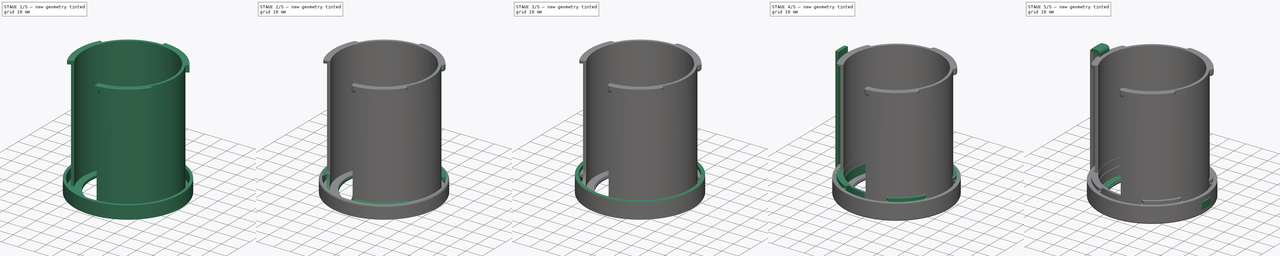
[diagram: build sequence overview — one tinted view per stage of 5, left to right]
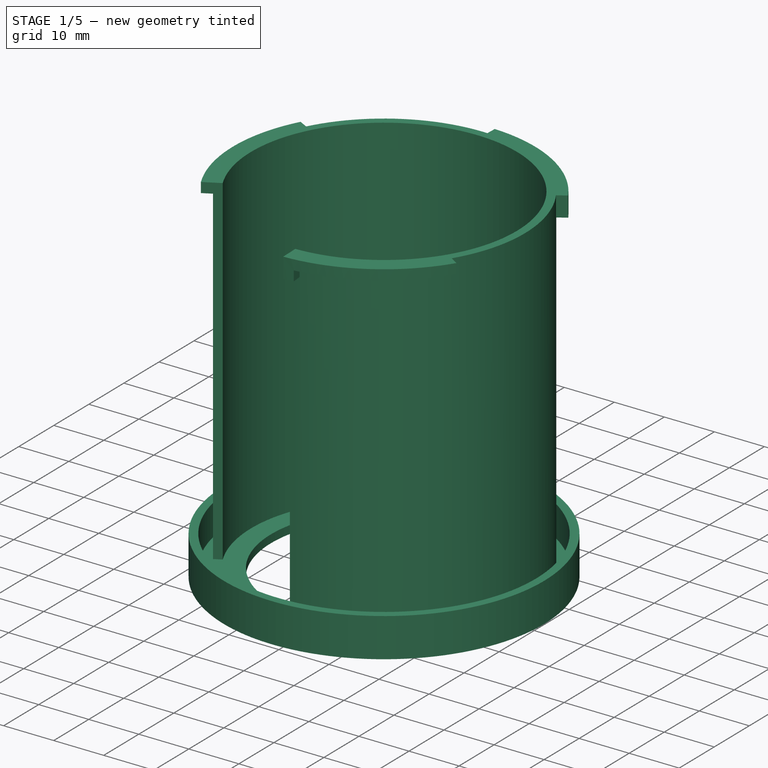
[diagram: stage 1 of 5 — iso view after this stage's code; geometry added in this stage tinted green]
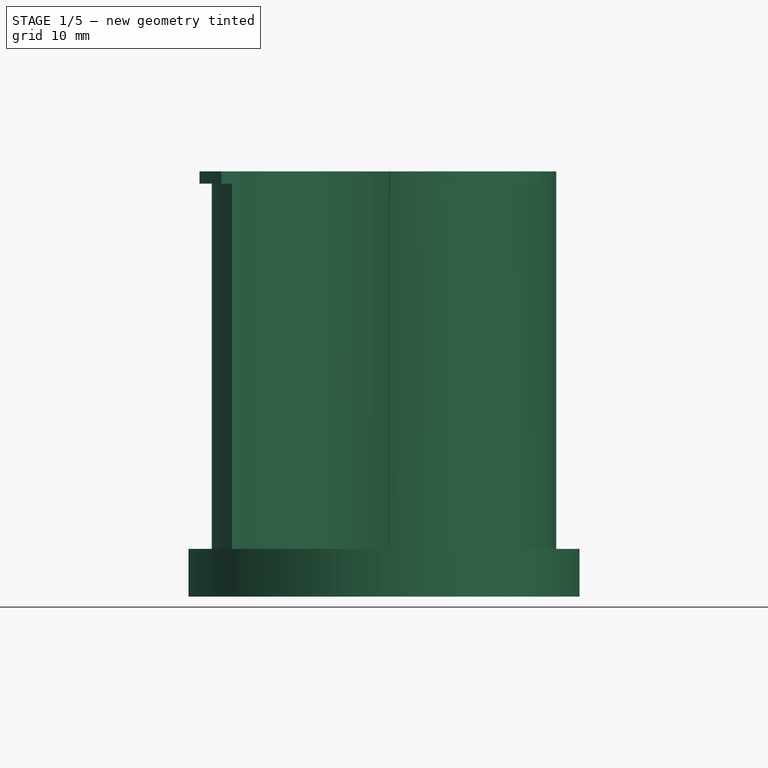
[diagram: stage 1 of 5 — front view after this stage's code; geometry added in this stage tinted green]
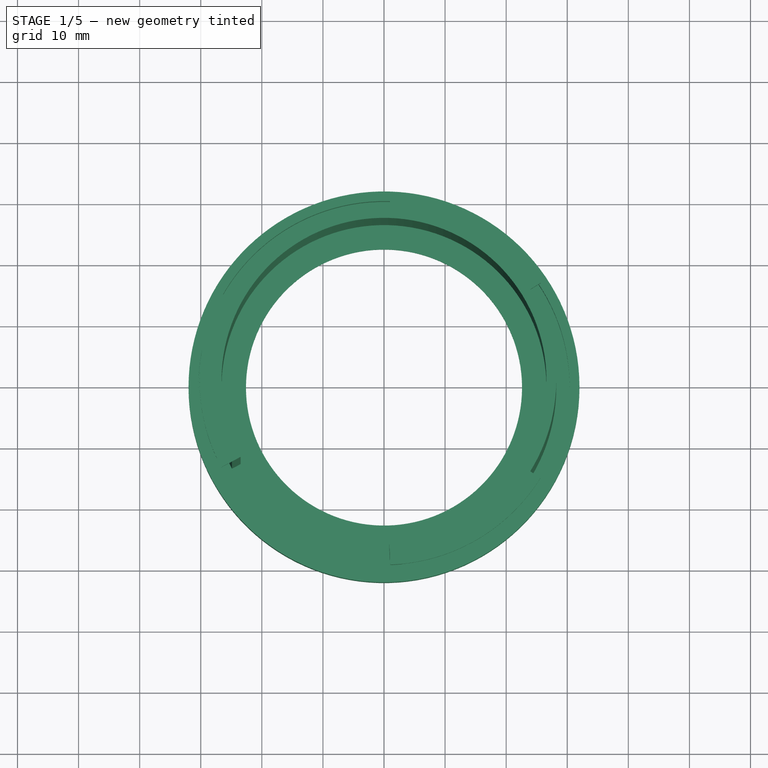
[diagram: stage 1 of 5 — top view after this stage's code; geometry added in this stage tinted green]
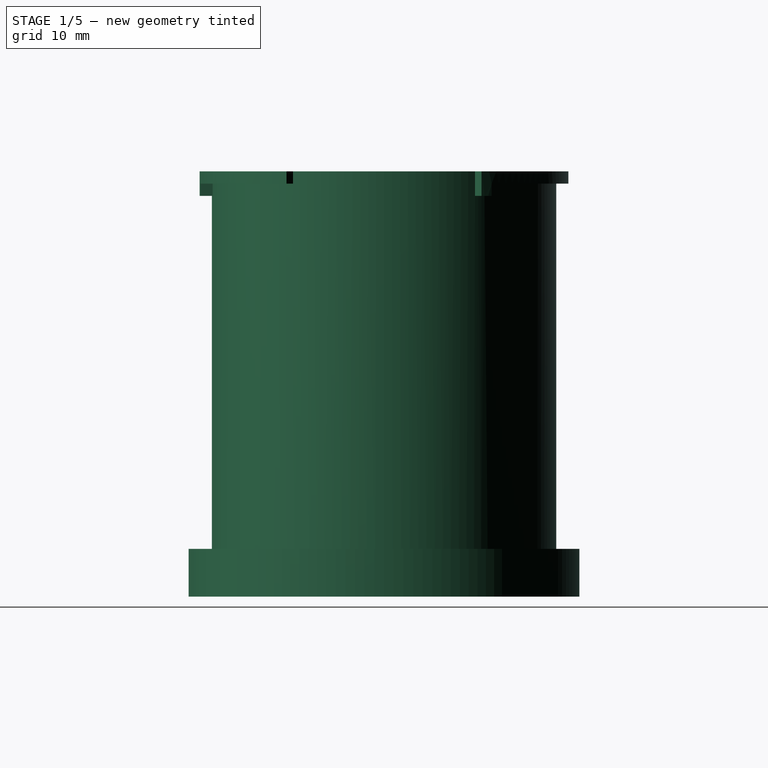
[diagram: stage 1 of 5 — right view after this stage's code; geometry added in this stage tinted green]
FCSTD DOCUMENT  (FreeCAD 0.21R33694 (Git))
Label: RadiatorHeadSupport
License: All rights reserved
LicenseURL: http://en.wikipedia.org/wiki/All_rights_reserved
objects: Sketcher::SketchObject×29, PartDesign::Pad×22, PartDesign::Fillet×11, PartDesign::Body×9, PartDesign::ShapeBinder×6, PartDesign::PolarPattern×5, App::Part×3, Spreadsheet::Sheet×1, PartDesign::Pocket×1, PartDesign::Chamfer×1
note: 119 computed .brp shape members not serialized (recipe doc carries the construction recipe); baked Part::Feature solids carry a one-line shape summary decoded from their .brp

FEATURE [PartDesign::Body] Body005  label="V2_Cap"
  Group = -> [ShapeBinder003,Sketch016,Sketch017,Pad012,Sketch018,Pad013,Sketch019,Pad014,PolarPattern001,Fillet004,Fillet005]
  Origin = -> Origin007
  Tip = -> Fillet005
FEATURE [App::Part] Part001  label="V2"
  Group = -> [Body003,Body004,Body005]
  Origin = -> Origin004
FEATURE [Sketcher::SketchObject] Sketch020  label="V3_Base_Template"
  FullyConstrained = true
  MapMode = 5
  Support = -> [XY_Plane009]
  sketch-geometry (24):
    g0: Circle CenterX=-9.868e-13 CenterY=3.5183e-12 CenterZ=0 NormalX=0 NormalY=0 NormalZ=1 AngleXU=0 Radius=30.2
    g1: LineSegment StartX=-26.154 StartY=15.1 StartZ=0 EndX=-5.1124e-12 EndY=-30.2 EndZ=0
    g2: LineSegment StartX=-26.154 StartY=15.1 StartZ=0 EndX=26.154 EndY=15.1 EndZ=0
    g3: LineSegment StartX=26.154 StartY=15.1 StartZ=0 EndX=-5.1124e-12 EndY=-30.2 EndZ=0
    g4: LineSegment StartX=-5.1137e-12 StartY=-30.2 StartZ=0 EndX=-5.1137e-12 EndY=-28.2 EndZ=0
    g5: LineSegment StartX=-5.1137e-12 StartY=-28.2 StartZ=0 EndX=-5.1137e-12 EndY=-26.6 EndZ=0
    g6: Circle CenterX=-9.868e-13 CenterY=3.5183e-12 CenterZ=0 NormalX=0 NormalY=0 NormalZ=1 AngleXU=0 Radius=26.6
    g7: Circle CenterX=-9.868e-13 CenterY=3.5183e-12 CenterZ=0 NormalX=0 NormalY=0 NormalZ=1 AngleXU=0 Radius=28.2
    g8: LineSegment StartX=-5.1137e-12 StartY=-26.6 StartZ=0 EndX=-5.1137e-12 EndY=-22.6 EndZ=0
    g9: LineSegment StartX=-5.1137e-12 StartY=-22.6 StartZ=0 EndX=-5.1137e-12 EndY=30.2 EndZ=0
    g10: Circle CenterX=-9.868e-13 CenterY=3.5183e-12 CenterZ=0 NormalX=0 NormalY=0 NormalZ=1 AngleXU=0 Radius=22.6
    g11: LineSegment StartX=-26.154 StartY=15.1 StartZ=0 EndX=26.154 EndY=-15.1 EndZ=0
    g12: LineSegment StartX=26.154 StartY=15.1 StartZ=0 EndX=-26.154 EndY=-15.1 EndZ=0
    g13: LineSegment StartX=-26.154 StartY=-15.1 StartZ=0 EndX=-26.6396 EndY=-14.2258 EndZ=0
    g14: LineSegment StartX=-26.154 StartY=15.1 StartZ=0 EndX=-26.6396 EndY=14.2258 EndZ=0
    g15: LineSegment StartX=-25.6684 StartY=15.9742 StartZ=0 EndX=-19.1878 EndY=11.9411 EndZ=0
    g16: LineSegment StartX=-25.6684 StartY=-15.9742 StartZ=0 EndX=-19.1878 EndY=-11.9411 EndZ=0
    g17: LineSegment StartX=-26.6396 StartY=14.2258 StartZ=0 EndX=-24.8754 EndY=13.2837 EndZ=0
    g18: LineSegment StartX=-24.8754 StartY=13.2837 StartZ=0 EndX=-19.9356 EndY=10.6458 EndZ=0
    g19: LineSegment StartX=-26.6396 StartY=-14.2258 StartZ=0 EndX=-24.8754 EndY=-13.2837 EndZ=0
    g20: LineSegment StartX=-24.8754 StartY=-13.2837 StartZ=0 EndX=-19.9356 EndY=-10.6458 EndZ=0
    g21: LineSegment StartX=-5.1137e-12 StartY=-30.2 StartZ=0 EndX=0.999863 EndY=-30.1834 EndZ=0
    g22: LineSegment StartX=0.999863 StartY=-30.1834 StartZ=0 EndX=0.748242 EndY=-22.5876 EndZ=0
    g23: LineSegment StartX=-27.5227 StartY=12.4314 StartZ=0 EndX=-25.7 EndY=11.6081 EndZ=0
  constraints (72):
    c: PointOnObject(g1,g0)
    c: PointOnObject(g1,g0)
    c: Coincident(g2,g1)
    c: PointOnObject(g2,g0)
    c: Coincident(g3,g2)
    c: Coincident(g3,g1)
    c: Equal(g2,g1)
    c: Equal(g1,g3)
    c: Coincident(g4,g1)
    c: Coincident(g4,g5)
    c: Vertical(g4)
    c: Coincident(g5,g8)
    c: Vertical(g5)
    c: DistanceY(g5,g5) = 1.6
    c: DistanceY(g4,g4) = 2
    c: Coincident(g6,g0)
    c: Radius(g6) = 26.6
    c: PointOnObject(g5,g6)
    c: Coincident(g7,g0)
    c: PointOnObject(g4,g7)
    c: Coincident(g0,g-1)
    c: Coincident(g8,g9)
    c: Vertical(g8)
    c: Vertical(g9)
    c: DistanceY(g8,g8) = 4
    c: Coincident(g0,g10)
    c: PointOnObject(g8,g10)
    c: PointOnObject(g9,g0)
    c: PointOnObject(g0,g9)
    c: Coincident(g11,g1)
    c: PointOnObject(g11,g0)
    c: Coincident(g12,g2)
    c: PointOnObject(g12,g0)
    c: PointOnObject(g0,g12)
    c: PointOnObject(g0,g11)
    c: Coincident(g13,g12)
    c: PointOnObject(g13,g0)
    c: Coincident(g14,g11)
    c: PointOnObject(g14,g0)
    c: Equal(g14,g13)
    c: Distance(g13) = 1
    c: PointOnObject(g15,g10)
    c: PointOnObject(g16,g10)
    c: PointOnObject(g0,g16)
    c: PointOnObject(g0,g15)
    c: Symmetric(g13,g16,g12)
    c: Symmetric(g14,g15,g11)
    c: Coincident(g17,g14)
    c: PointOnObject(g17,g7)
    c: Coincident(g18,g17)
    c: PointOnObject(g18,g10)
    c: Coincident(g19,g13)
    c: PointOnObject(g19,g7)
    c: Coincident(g20,g19)
    c: PointOnObject(g20,g10)
    c: PointOnObject(g0,g20)
    c: PointOnObject(g0,g19)
    c: PointOnObject(g0,g18)
    c: PointOnObject(g0,g17)
    c: Coincident(g21,g4)
    c: PointOnObject(g21,g0)
    c: Equal(g13,g21)
    c: Coincident(g22,g21)
    c: PointOnObject(g22,g10)
    c: PointOnObject(g0,g22)
    c: Diameter(g6) = 53.2
    c: Diameter(g10) = 45.2
    c: Diameter(g7) = 56.4
    c: PointOnObject(g23,g0)
    c: PointOnObject(g23,g7)
    c: PointOnObject(g0,g23)
    c: Distance(g23,g17) = 2
FEATURE [PartDesign::ShapeBinder] ShapeBinder004
  Support = -> [Sketch020]
  TraceSupport = false
FEATURE [Sketcher::SketchObject] Sketch021  label="V3B_Base"
  ExternalGeometry = -> [ShapeBinder004]
  FullyConstrained = true
  MapMode = 5
  Support = -> [XY_Plane010]
  sketch-geometry (2):
    g0: Circle CenterX=-2.72e-14 CenterY=3.157e-13 CenterZ=0 NormalX=0 NormalY=0 NormalZ=1 AngleXU=0 Radius=22.6
    g1: Circle CenterX=-2.72e-14 CenterY=3.157e-13 CenterZ=0 NormalX=0 NormalY=0 NormalZ=1 AngleXU=0 Radius=28.2
  constraints (4):
    c: Coincident(g1,g0)
    c: Coincident(g-3,g0)
    c: Equal(g-4,g1)
    c: Equal(g-3,g0)
FEATURE [PartDesign::Pad] Pad015  label="V3B_Base_"
  Direction = (0,0,1)
  Length = 1.6
  Length2 = 10
  Profile = -> Sketch021
  ReferenceAxis = -> Sketch021 [N_Axis]
  Type = 0
FEATURE [Sketcher::SketchObject] Sketch022  label="V3B_Shell"
  AttachmentOffset = pos=(0,0,1.6) rot=(0,0,1;0rad)
  ExternalGeometry = -> [ShapeBinder004]
  FullyConstrained = true
  MapMode = 5
  Placement = pos=(0,0,1.6) rot=(0,0,1;0rad)
  Support = -> [XY_Plane010]
  expr: .AttachmentOffset.Base.z = <<V3B_Base>>.AttachmentOffset.Base.z + <<V3B_Base_>>.Length
  sketch-geometry (4):
    g0: ArcOfCircle CenterX=1.41029e-11 CenterY=1.00061e-11 CenterZ=0 NormalX=0 NormalY=0 NormalZ=1 AngleXU=0 Radius=26.6 StartAngle=4.7455 EndAngle=9.91526
    g1: ArcOfCircle CenterX=4.249e-13 CenterY=-1.815e-12 CenterZ=0 NormalX=0 NormalY=0 NormalZ=1 AngleXU=0 Radius=28.2 StartAngle=4.7455 EndAngle=9.91526
    g2: LineSegment StartX=-24.8754 StartY=-13.2837 StartZ=0 EndX=-23.464 EndY=-12.53 EndZ=0
    g3: LineSegment StartX=0.933647 StartY=-28.1845 StartZ=0 EndX=0.880674 EndY=-26.5854 EndZ=0
  constraints (14):
    c: PointOnObject(g0,g-4)
    c: PointOnObject(g0,g-4)
    c: Equal(g-4,g0)
    c: PointOnObject(g1,g-3)
    c: PointOnObject(g1,g-3)
    c: Equal(g1,g-3)
    c: Coincident(g2,g1)
    c: Coincident(g2,g0)
    c: Coincident(g3,g1)
    c: Coincident(g3,g0)
    c: PointOnObject(g1,g-5)
    c: PointOnObject(g0,g-5)
    c: PointOnObject(g0,g-6)
    c: PointOnObject(g1,g-6)
FEATURE [PartDesign::Pad] Pad016  label="V3B_Shell_"
  BaseFeature = -> Pad015
  Direction = (0,0,1)
  Length = 68
  Length2 = 10
  Profile = -> Sketch022
  ReferenceAxis = -> Sketch022 [N_Axis]
  Type = 0
FEATURE [Sketcher::SketchObject] Sketch024  label="V3B_Lock"
  AttachmentOffset = pos=(0,0,69.6) rot=(0,0,1;0rad)
  ExternalGeometry = -> [ShapeBinder004]
  FullyConstrained = true
  MapMode = 5
  Placement = pos=(0,0,69.6) rot=(0,0,1;0rad)
  Support = -> [XY_Plane010]
  expr: .AttachmentOffset.Base.z = <<V3B_Shell>>.AttachmentOffset.Base.z + <<V3B_Shell_>>.Length
  sketch-geometry (4):
    g0: ArcOfCircle CenterX=4.54e-13 CenterY=-1.8466e-12 CenterZ=0 NormalX=0 NormalY=0 NormalZ=1 AngleXU=0 Radius=28.2 StartAngle=2.65111 EndAngle=3.63208
    g1: ArcOfCircle CenterX=4.512e-13 CenterY=-1.9278e-12 CenterZ=0 NormalX=0 NormalY=0 NormalZ=1 AngleXU=0 Radius=30.2 StartAngle=2.65111 EndAngle=3.63208
    g2: LineSegment StartX=-26.6396 StartY=14.2258 StartZ=0 EndX=-24.8754 EndY=13.2837 EndZ=0
    g3: LineSegment StartX=-26.6396 StartY=-14.2258 StartZ=0 EndX=-24.8754 EndY=-13.2837 EndZ=0
  constraints (10):
    c: Coincident(g0,g-5)
    c: Coincident(g0,g-6)
    c: Coincident(g1,g-5)
    c: Coincident(g1,g-6)
    c: Equal(g1,g-4)
    c: Equal(g0,g-3)
    c: Coincident(g2,g1)
    c: Coincident(g2,g0)
    c: Coincident(g3,g1)
    c: Coincident(g3,g0)
FEATURE [PartDesign::Pad] Pad017  label="V3B_Lock_"
  BaseFeature = -> Pad016
  Direction = (0,0,1)
  Length = 2
  Length2 = 10
  Profile = -> Sketch024
  ReferenceAxis = -> Sketch024 [N_Axis]
  Reversed = true
  Type = 0
  expr: Length = 2
FEATURE [PartDesign::PolarPattern] PolarPattern002
  Angle = 360
  Axis = -> Sketch024 [N_Axis]
  BaseFeature = -> Pad017
  Occurrences = 3
  Originals = -> [Pad017]
FEATURE [Sketcher::SketchObject] Sketch025  label="V3_Cap_Template"
  ExternalGeometry = -> [Sketch020]
  FullyConstrained = true
  MapMode = 5
  Support = -> [XY_Plane009]
  sketch-geometry (10):
    g0: Circle CenterX=-9.484e-13 CenterY=3.4679e-12 CenterZ=0 NormalX=0 NormalY=0 NormalZ=1 AngleXU=0 Radius=22.6
    g1: Circle CenterX=-9.484e-13 CenterY=3.4679e-12 CenterZ=0 NormalX=0 NormalY=0 NormalZ=1 AngleXU=0 Radius=28.4
    g2: Circle CenterX=-9.484e-13 CenterY=3.4679e-12 CenterZ=0 NormalX=0 NormalY=0 NormalZ=1 AngleXU=0 Radius=30.4
    g3: Circle CenterX=-9.484e-13 CenterY=3.4679e-12 CenterZ=0 NormalX=0 NormalY=0 NormalZ=1 AngleXU=0 Radius=32
    g4: LineSegment StartX=-24.8754 StartY=13.2837 StartZ=0 EndX=-25.0518 EndY=13.3779 EndZ=0
    g5: LineSegment StartX=-26.6396 StartY=14.2258 StartZ=0 EndX=-26.816 EndY=14.32 EndZ=0
    g6: LineSegment StartX=-26.816 StartY=14.32 StartZ=0 EndX=-28.2273 EndY=15.0737 EndZ=0
    g7: LineSegment StartX=-26.816 StartY=14.32 StartZ=0 EndX=-25.0518 EndY=13.3779 EndZ=0
    g8: LineSegment StartX=-25.0518 StartY=-13.3779 StartZ=0 EndX=-26.816 EndY=-14.32 EndZ=0
    g9: LineSegment StartX=-25.8823 StartY=11.6904 StartZ=0 EndX=-27.705 EndY=12.5137 EndZ=0
  constraints (27):
    c: Coincident(g1,g0)
    c: Coincident(g2,g0)
    c: Coincident(g3,g0)
    c: Coincident(g-3,g0)
    c: Equal(g0,g-3)
    c: Coincident(g4,g-6)
    c: PointOnObject(g4,g-6)
    c: PointOnObject(g4,g1)
    c: Distance(g4) = 0.2
    c: Coincident(g5,g-6)
    c: PointOnObject(g5,g-6)
    c: Equal(g4,g5)
    c: PointOnObject(g5,g2)
    c: Coincident(g6,g5)
    c: PointOnObject(g6,g-6)
    c: Distance(g6) = 1.6
    c: PointOnObject(g6,g3)
    c: Coincident(g7,g5)
    c: Coincident(g7,g4)
    c: PointOnObject(g8,g1)
    c: PointOnObject(g8,g2)
    c: PointOnObject(g8,g-7)
    c: PointOnObject(g-7,g8)
    c: PointOnObject(g9,g1)
    c: PointOnObject(g9,g2)
    c: PointOnObject(g9,g-8)
    c: PointOnObject(g9,g-8)
FEATURE [PartDesign::Body] Body006  label="V3_Shared"
  Group = -> [Sketch020,Sketch025]
  Origin = -> Origin009
FEATURE [PartDesign::ShapeBinder] ShapeBinder005
  Support = -> [Sketch025]
  TraceSupport = false
FEATURE [Sketcher::SketchObject] Sketch026  label="V3C_Base"
  ExternalGeometry = -> [ShapeBinder005]
  FullyConstrained = true
  MapMode = 5
  Support = -> [XY_Plane011]
  sketch-geometry (2):
    g0: Circle CenterX=1.41543e-11 CenterY=9.9469e-12 CenterZ=0 NormalX=0 NormalY=0 NormalZ=1 AngleXU=0 Radius=22.6
    g1: Circle CenterX=1.41543e-11 CenterY=9.9469e-12 CenterZ=0 NormalX=0 NormalY=0 NormalZ=1 AngleXU=0 Radius=32
  constraints (4):
    c: Coincident(g1,g0)
    c: Coincident(g-3,g0)
    c: Equal(g-4,g1)
    c: Equal(g-3,g0)
FEATURE [PartDesign::Pad] Pad018  label="V3C_Base_"
  Direction = (0,0,1)
  Length = 1.6
  Length2 = 10
  Profile = -> Sketch026
  ReferenceAxis = -> Sketch026 [N_Axis]
  Type = 0
FEATURE [Sketcher::SketchObject] Sketch027  label="V3C_Shell"
  AttachmentOffset = pos=(0,0,1.6) rot=(0,0,1;0rad)
  ExternalGeometry = -> [ShapeBinder005]
  FullyConstrained = true
  MapMode = 5
  Placement = pos=(0,0,1.6) rot=(0,0,1;0rad)
  Support = -> [XY_Plane011]
  expr: .AttachmentOffset.Base.z = <<V3C_Base>>.AttachmentOffset.Base.z + <<V3C_Base_>>.Length
  sketch-geometry (2):
    g0: Circle CenterX=1.41431e-11 CenterY=9.951e-12 CenterZ=0 NormalX=0 NormalY=0 NormalZ=1 AngleXU=0 Radius=30.4
    g1: Circle CenterX=1.41431e-11 CenterY=9.951e-12 CenterZ=0 NormalX=0 NormalY=0 NormalZ=1 AngleXU=0 Radius=32
  constraints (4):
    c: Coincident(g1,g0)
    c: Coincident(g-3,g0)
    c: Equal(g-4,g1)
    c: Equal(g-3,g0)
FEATURE [PartDesign::Pad] Pad019  label="V3C_Shell_"
  BaseFeature = -> Pad018
  Direction = (0,0,1)
  Length = 6.2
  Length2 = 10
  Profile = -> Sketch027
  ReferenceAxis = -> Sketch027 [N_Axis]
  Refine = true
  Type = 0
FEATURE [PartDesign::Body] Body008  label="V3_Cap"
  Group = -> [ShapeBinder005,Sketch026,Pad018,Sketch027,Pad019,Sketch028,Fillet009,Pad020,PolarPattern003,Fillet010]
  Origin = -> Origin011
  Tip = -> Fillet010
FEATURE [Sketcher::SketchObject] Sketch029  label="V3B_LockStop"
  AttachmentOffset = pos=(0,0,67.6) rot=(0,0,1;0rad)
  ExternalGeometry = -> [ShapeBinder004]
  FullyConstrained = true
  MapMode = 5
  Placement = pos=(0,0,67.6) rot=(0,0,1;0rad)
  Support = -> [XY_Plane010]
  expr: .AttachmentOffset.Base.z = <<V3B_Lock>>.AttachmentOffset.Base.z - <<V3B_Lock_>>.Length
  sketch-geometry (4):
    g0: ArcOfCircle CenterX=-9.9676e-12 CenterY=-1.44174e-11 CenterZ=0 NormalX=0 NormalY=0 NormalZ=1 AngleXU=0 Radius=30.2 StartAngle=2.65111 EndAngle=2.71735
    g1: ArcOfCircle CenterX=-1.1615e-09 CenterY=-2.35423e-09 CenterZ=0 NormalX=0 NormalY=0 NormalZ=1 AngleXU=0 Radius=28.2 StartAngle=2.65111 EndAngle=2.71735
    g2: LineSegment StartX=-26.6396 StartY=14.2258 StartZ=0 EndX=-24.8754 EndY=13.2837 EndZ=0
    g3: LineSegment StartX=-27.5227 StartY=12.4314 StartZ=0 EndX=-25.7 EndY=11.6081 EndZ=0
  constraints (10):
    c: Coincident(g0,g-5)
    c: Coincident(g0,g-6)
    c: Equal(g0,g-3)
    c: Coincident(g1,g-6)
    c: Coincident(g1,g-5)
    c: Equal(g1,g-4)
    c: Coincident(g2,g0)
    c: Coincident(g2,g1)
    c: Coincident(g3,g0)
    c: Coincident(g3,g1)
FEATURE [PartDesign::Pad] Pad021  label="V3B_LockStop_"
  BaseFeature = -> PolarPattern002
  Direction = (0,0,1)
  Length = 2
  Length2 = 10
  Profile = -> Sketch029
  ReferenceAxis = -> Sketch029 [N_Axis]
  Reversed = true
  Type = 0
FEATURE [PartDesign::PolarPattern] PolarPattern004
  Angle = 360
  Axis = -> Sketch029 [N_Axis]
  BaseFeature = -> Pad021
  Occurrences = 3
  Originals = -> [Pad021]
  Refine = true
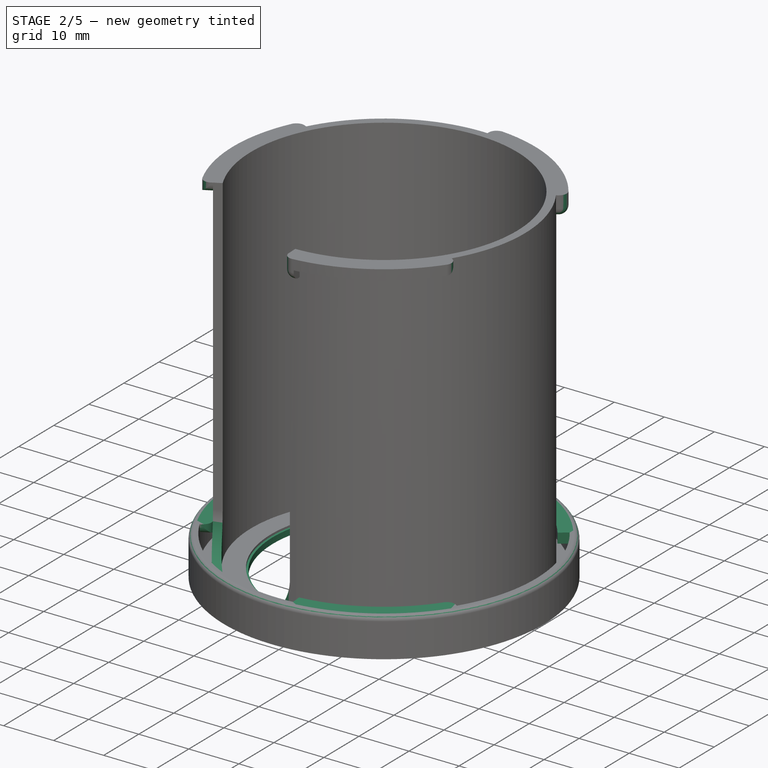
[diagram: stage 2 of 5 — iso view after this stage's code; geometry added in this stage tinted green]
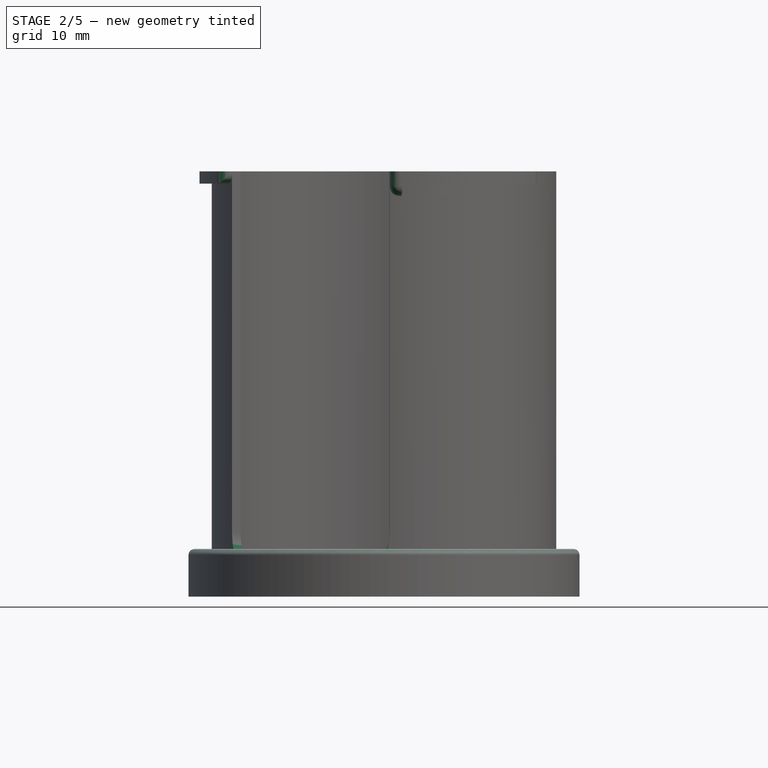
[diagram: stage 2 of 5 — front view after this stage's code; geometry added in this stage tinted green]
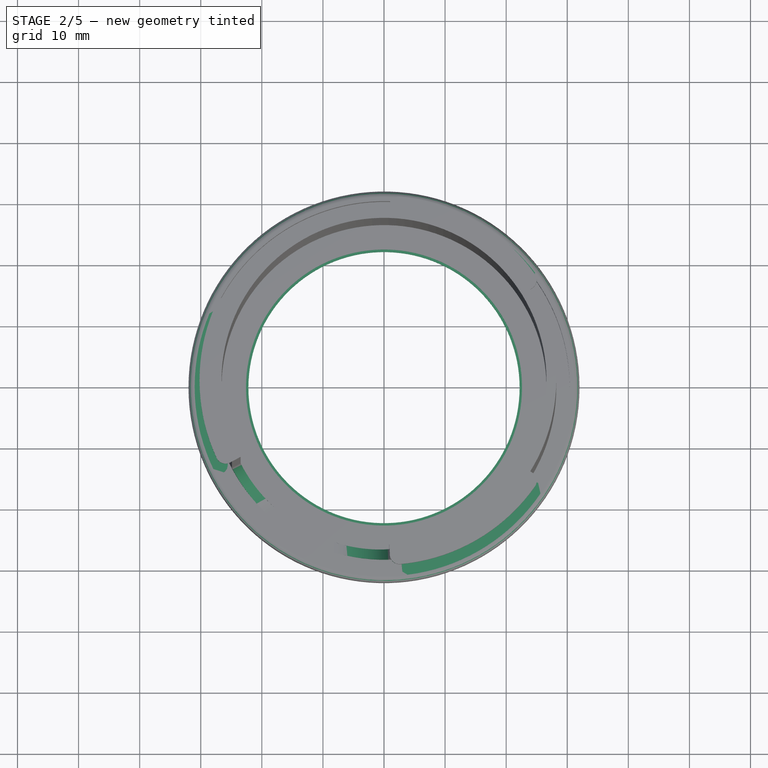
[diagram: stage 2 of 5 — top view after this stage's code; geometry added in this stage tinted green]
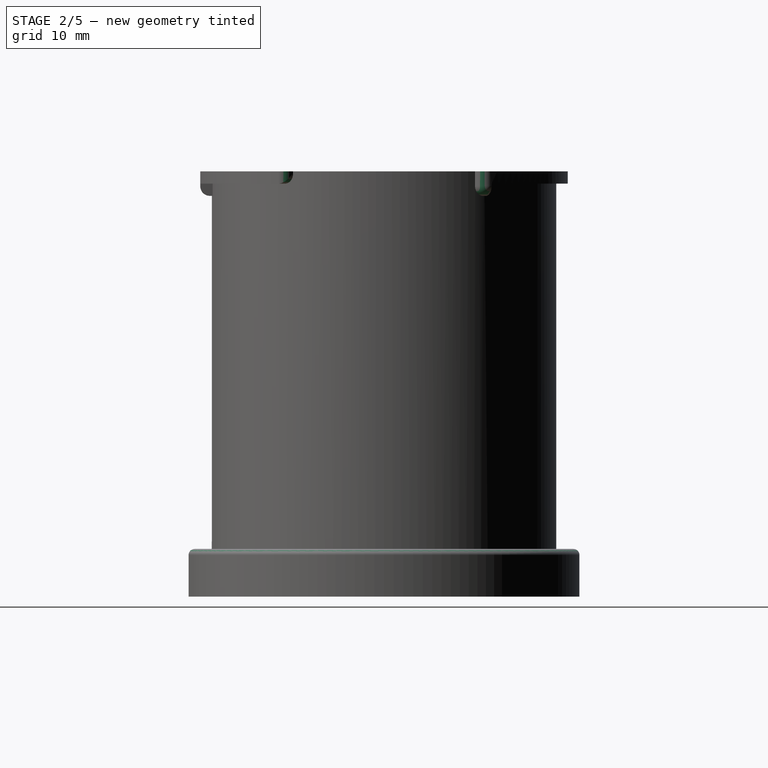
[diagram: stage 2 of 5 — right view after this stage's code; geometry added in this stage tinted green]
FEATURE [PartDesign::Body] Body004  label="V2_Base"
  Group = -> [ShapeBinder002,Sketch012,Pad009,Sketch013,Pocket,Sketch014,Pad010,Sketch015,Fillet003,Chamfer,Pad011,PolarPattern,Fillet002]
  Origin = -> Origin006
  Tip = -> Fillet002
FEATURE [PartDesign::ShapeBinder] ShapeBinder003
  Support = -> [Sketch011]
  TraceSupport = false
FEATURE [Sketcher::SketchObject] Sketch016  label="V2C_Template"
  ExternalGeometry = -> [ShapeBinder003]
  FullyConstrained = true
  MapMode = 5
  Support = -> [XY_Plane007]
  sketch-geometry (9):
    g0: Circle CenterX=-5.058e-13 CenterY=5.87e-14 CenterZ=0 NormalX=0 NormalY=0 NormalZ=1 AngleXU=0 Radius=22.2
    g1: Circle CenterX=-5.058e-13 CenterY=5.87e-14 CenterZ=0 NormalX=0 NormalY=0 NormalZ=1 AngleXU=0 Radius=30
    g2: Circle CenterX=-5.058e-13 CenterY=5.87e-14 CenterZ=0 NormalX=0 NormalY=0 NormalZ=1 AngleXU=0 Radius=28
    g3: LineSegment StartX=-1 StartY=26.1809 StartZ=0 EndX=-0.847328 EndY=22.1838 EndZ=0
    g4: LineSegment StartX=-4.22978 StartY=27.4763 StartZ=0 EndX=-4.26021 EndY=27.674 EndZ=0
    g5: Circle CenterX=-5.058e-13 CenterY=5.87e-14 CenterZ=0 NormalX=0 NormalY=0 NormalZ=1 AngleXU=0 Radius=32
    g6: LineSegment StartX=-5.025e-13 StartY=32 StartZ=0 EndX=-5.025e-13 EndY=30 EndZ=0
    g7: LineSegment StartX=-22.6274 StartY=22.6274 StartZ=0 EndX=22.6274 EndY=-22.6274 EndZ=0
    g8: LineSegment StartX=-5.025e-13 StartY=30 StartZ=0 EndX=-5.025e-13 EndY=29.8 EndZ=0
  constraints (25):
    c: Coincident(g1,g0)
    c: Coincident(g2,g0)
    c: Coincident(g-4,g0)
    c: Coincident(g3,g-3)
    c: PointOnObject(g3,g0)
    c: PointOnObject(g-4,g3)
    c: Distance(g3) = 4
    c: Coincident(g4,g-5)
    c: PointOnObject(g-4,g4)
    c: Coincident(g0,g5)
    c: PointOnObject(g6,g5)
    c: Vertical(g6)
    c: DistanceY(g6,g6) = 2
    c: PointOnObject(g7,g5)
    c: PointOnObject(g-6,g7)
    c: PointOnObject(g-6,g7)
    c: PointOnObject(g7,g5)
    c: PointOnObject(g4,g2)
    c: Distance(g4) = 0.2
    c: Coincident(g8,g6)
    c: PointOnObject(g8,g-4)
    c: Vertical(g8)
    c: Equal(g8,g4)
    c: PointOnObject(g6,g1)
    c: PointOnObject(g-4,g6)
FEATURE [Sketcher::SketchObject] Sketch017  label="V2C_Base"
  ExternalGeometry = -> [Sketch016]
  FullyConstrained = true
  MapMode = 5
  Support = -> [XY_Plane007]
  sketch-geometry (2):
    g0: Circle CenterX=-5.095e-13 CenterY=1.872e-13 CenterZ=0 NormalX=0 NormalY=0 NormalZ=1 AngleXU=0 Radius=22.2
    g1: Circle CenterX=-5.095e-13 CenterY=1.872e-13 CenterZ=0 NormalX=0 NormalY=0 NormalZ=1 AngleXU=0 Radius=32
  constraints (4):
    c: Coincident(g1,g0)
    c: Coincident(g-3,g0)
    c: Equal(g1,g-3)
    c: Equal(g0,g-4)
FEATURE [PartDesign::Pad] Pad012  label="V2C_Base_"
  Direction = (0,0,1)
  Length = 1.2
  Length2 = 10
  Profile = -> Sketch017
  ReferenceAxis = -> Sketch017 [N_Axis]
  Type = 0
FEATURE [Sketcher::SketchObject] Sketch028  label="V3C_Lock"
  AttachmentOffset = pos=(0,0,7.8) rot=(0,0,1;0rad)
  ExternalGeometry = -> [ShapeBinder005]
  FullyConstrained = true
  MapMode = 5
  Placement = pos=(0,0,7.8) rot=(0,0,1;0rad)
  Support = -> [XY_Plane011]
  expr: .AttachmentOffset.Base.z = <<V3C_Shell>>.AttachmentOffset.Base.z + <<V3C_Shell_>>.Length
  sketch-geometry (4):
    g0: ArcOfCircle CenterX=-5.061e-13 CenterY=-4.6221e-12 CenterZ=0 NormalX=0 NormalY=0 NormalZ=1 AngleXU=0 Radius=28.4 StartAngle=2.71735 EndAngle=3.63208
    g1: ArcOfCircle CenterX=9.83e-14 CenterY=-1.47786e-11 CenterZ=0 NormalX=0 NormalY=0 NormalZ=1 AngleXU=0 Radius=30.4 StartAngle=2.71735 EndAngle=3.63208
    g2: LineSegment StartX=-27.705 StartY=12.5137 StartZ=0 EndX=-25.8823 EndY=11.6904 EndZ=0
    g3: LineSegment StartX=-26.816 StartY=-14.32 StartZ=0 EndX=-25.0518 EndY=-13.3779 EndZ=0
  constraints (10):
    c: Coincident(g0,g-3)
    c: Coincident(g1,g-3)
    c: Equal(g0,g-4)
    c: Equal(g1,g-5)
    c: Coincident(g3,g1)
    c: Coincident(g3,g0)
    c: Coincident(g1,g2)
    c: Coincident(g1,g-6)
    c: Coincident(g0,g-6)
    c: Coincident(g0,g2)
FEATURE [PartDesign::Fillet] Fillet009
  Base = -> Pad019 [Edge1,Edge8]
  BaseFeature = -> Pad019
  Radius = 1
  SupportTransform = false
  UseAllEdges = false
FEATURE [PartDesign::Pad] Pad020  label="V3C_Lock_"
  BaseFeature = -> Fillet009
  Direction = (0,0,1)
  Length = 2
  Length2 = 10
  Profile = -> Sketch028
  ReferenceAxis = -> Sketch028 [N_Axis]
  Reversed = true
  Type = 0
FEATURE [PartDesign::PolarPattern] PolarPattern003
  Angle = 360
  Axis = -> Sketch028 [N_Axis]
  BaseFeature = -> Pad020
  Occurrences = 3
  Originals = -> [Pad020]
  Refine = true
FEATURE [PartDesign::Fillet] Fillet010
  Base = -> PolarPattern003 [Edge40,Edge26,Edge33,Edge35,Edge42,Edge28]
  BaseFeature = -> PolarPattern003
  Radius = 1.6
  SupportTransform = false
  UseAllEdges = false
  expr: Radius = <<V3C_Lock_>>.Length * 0.8
FEATURE [PartDesign::Fillet] Fillet006
  Base = -> PolarPattern004 [Edge52,Edge51,Edge60,Edge62,Edge59,Edge30,Edge28,Edge38,Edge64,Edge37,Edge1,Edge4,Edge11,Edge12,Edge67]
  BaseFeature = -> PolarPattern004
  Radius = 1.6
  SupportTransform = false
  UseAllEdges = false
  expr: Radius = <<V3B_Lock_>>.Length * 0.8
FEATURE [PartDesign::Fillet] Fillet007
  Base = -> Fillet006 [Edge66,Edge64]
  BaseFeature = -> Fillet006
  Radius = 9
  SupportTransform = false
  UseAllEdges = false
FEATURE [PartDesign::Fillet] Fillet008
  Base = -> Fillet007 [Edge21]
  BaseFeature = -> Fillet007
  Radius = 1
  SupportTransform = false
  UseAllEdges = false
FEATURE [PartDesign::Body] Body007  label="V3_Base"
  Group = -> [ShapeBinder004,Sketch021,Pad015,Sketch022,Pad016,Sketch024,Pad017,PolarPattern002,Sketch029,Pad021,PolarPattern004,Fillet006,Fillet007,Fillet008]
  Origin = -> Origin010
  Tip = -> Fillet008
FEATURE [App::Part] Part002  label="V3"
  Group = -> [Body006,Body007,Body008]
  Origin = -> Origin008
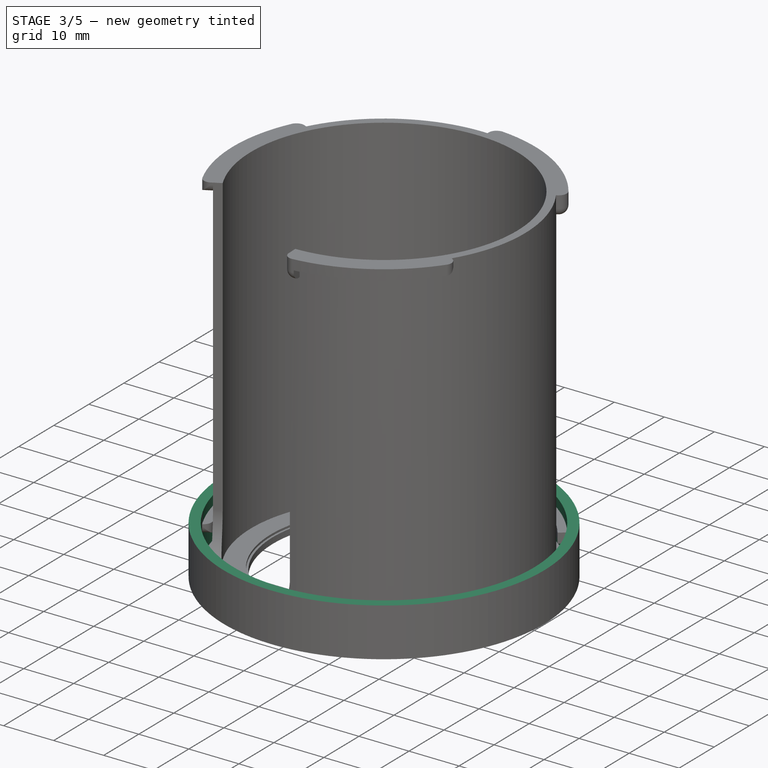
[diagram: stage 3 of 5 — iso view after this stage's code; geometry added in this stage tinted green]
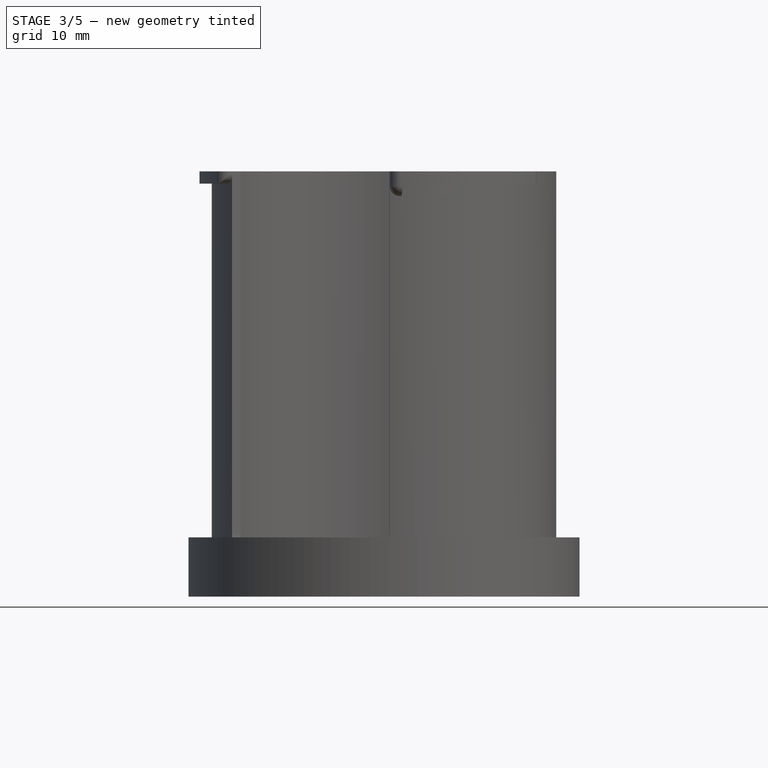
[diagram: stage 3 of 5 — front view after this stage's code; geometry added in this stage tinted green]
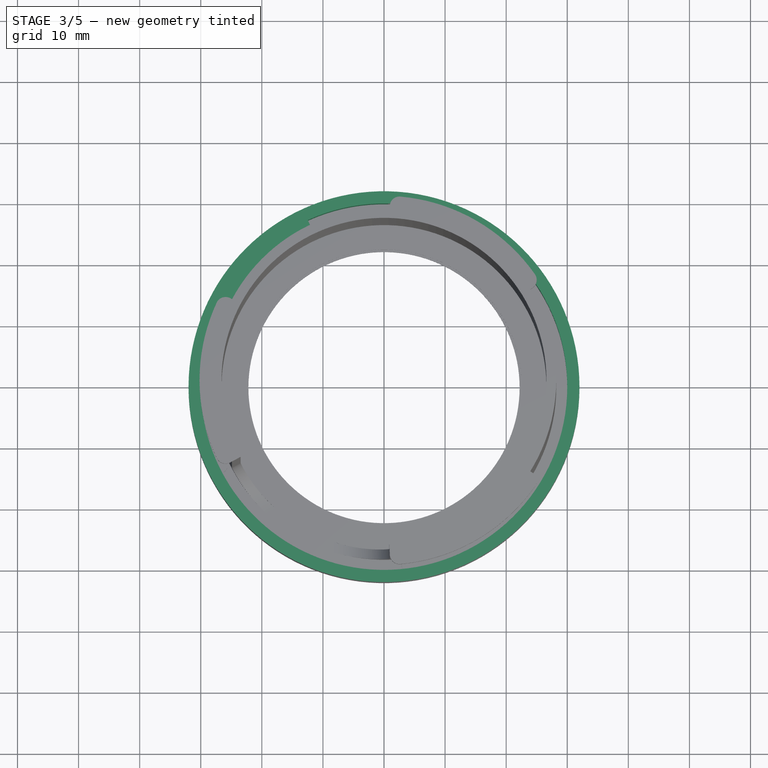
[diagram: stage 3 of 5 — top view after this stage's code; geometry added in this stage tinted green]
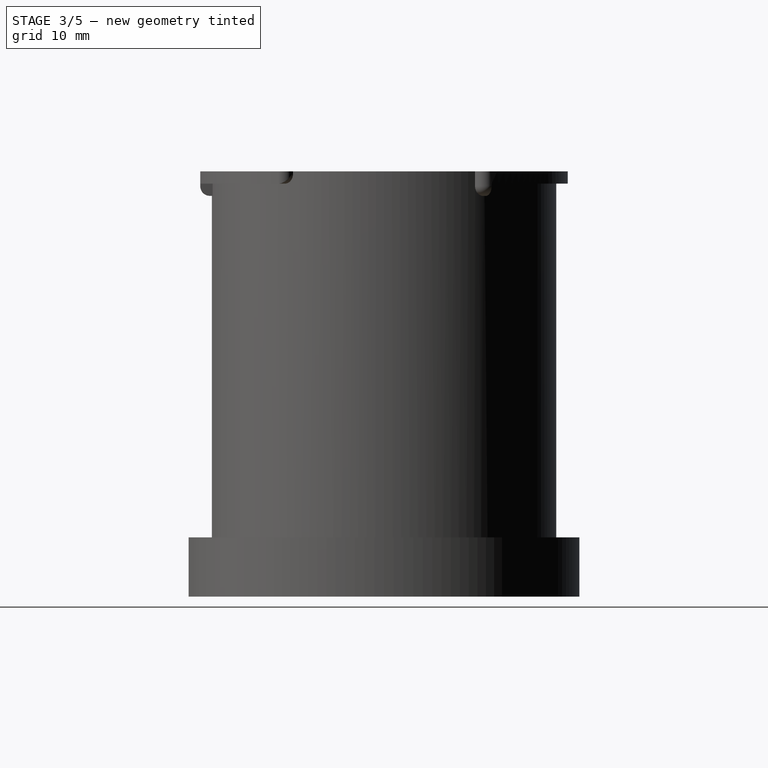
[diagram: stage 3 of 5 — right view after this stage's code; geometry added in this stage tinted green]
FEATURE [PartDesign::Body] Body002  label="V1_Arm"
  Group = -> [ShapeBinder001,Sketch005,Sketch006,Pad004,Sketch007,Pad005,Sketch008,Pad006,Sketch009,Pad007,Sketch010,Pad008,Fillet,Fillet001]
  Origin = -> Origin002
  Tip = -> Fillet001
FEATURE [App::Part] Part  label="V1"
  Group = -> [Body,Body001,Body002]
  Origin = -> Origin003
FEATURE [Sketcher::SketchObject] Sketch011  label="V2_Template"
  FullyConstrained = true
  MapMode = 5
  Support = -> [XY_Plane005]
  sketch-geometry (26):
    g0: ArcOfCircle CenterX=-5.025e-13 CenterY=5e-16 CenterZ=0 NormalX=0 NormalY=0 NormalZ=1 AngleXU=0 Radius=26.2 StartAngle=1.60897 EndAngle=7.8158
    g1: LineSegment StartX=-1 StartY=26.1809 StartZ=0 EndX=1 EndY=26.1809 EndZ=0
    g2: ArcOfCircle CenterX=-5.025e-13 CenterY=5e-16 CenterZ=0 NormalX=0 NormalY=0 NormalZ=1 AngleXU=0 Radius=27.8 StartAngle=1.72354 EndAngle=7.70124
    g3: ArcOfCircle CenterX=-5.025e-13 CenterY=5e-16 CenterZ=0 NormalX=0 NormalY=0 NormalZ=1 AngleXU=0 Radius=34.8 StartAngle=1.60897 EndAngle=1.70042
    g4: ArcOfCircle CenterX=-5.025e-13 CenterY=5e-16 CenterZ=0 NormalX=0 NormalY=0 NormalZ=1 AngleXU=0 Radius=34.8 StartAngle=1.44117 EndAngle=1.53262
    g5: LineSegment StartX=4.22978 StartY=27.4763 StartZ=0 EndX=4.49836 EndY=34.508 EndZ=0
    g6: LineSegment StartX=-4.22978 StartY=27.4763 StartZ=0 EndX=-4.49836 EndY=34.508 EndZ=0
    g7: LineSegment StartX=-4.49836 StartY=34.508 StartZ=0 EndX=-1.32824 EndY=34.7746 EndZ=0
    g8: LineSegment StartX=1.32824 StartY=34.7746 StartZ=0 EndX=4.49836 EndY=34.508 EndZ=0
    g9: LineSegment StartX=-4.22978 StartY=27.4763 StartZ=0 EndX=-3.98634 EndY=25.895 EndZ=0
    g10: Circle CenterX=-5.025e-13 CenterY=5e-16 CenterZ=0 NormalX=0 NormalY=0 NormalZ=1 AngleXU=0 Radius=29.8
    g11: LineSegment StartX=-21.0718 StartY=21.0718 StartZ=0 EndX=21.0718 EndY=-21.0718 EndZ=0
    g12: LineSegment StartX=-21.0718 StartY=-21.0718 StartZ=0 EndX=21.0718 EndY=21.0718 EndZ=0
    g13: LineSegment StartX=-5.009e-13 StartY=-29.8 StartZ=0 EndX=-5.009e-13 EndY=29.8 EndZ=0
    g14: LineSegment StartX=-29.8 StartY=0 StartZ=0 EndX=29.8 EndY=0 EndZ=0
    g15: LineSegment StartX=-21.0718 StartY=21.0718 StartZ=0 EndX=-29.8 EndY=0 EndZ=0
    g16: LineSegment StartX=-29.8 StartY=0 StartZ=0 EndX=-21.0718 EndY=-21.0718 EndZ=0
    g17: LineSegment StartX=-21.0718 StartY=-21.0718 StartZ=0 EndX=-5.009e-13 EndY=-29.8 EndZ=0
    g18: LineSegment StartX=-5.009e-13 StartY=-29.8 StartZ=0 EndX=21.0718 EndY=-21.0718 EndZ=0
    g19: LineSegment StartX=21.0718 StartY=-21.0718 StartZ=0 EndX=29.8 EndY=0 EndZ=0
    g20: LineSegment StartX=29.8 StartY=0 StartZ=0 EndX=21.0718 EndY=21.0718 EndZ=0
    g21: LineSegment StartX=21.0718 StartY=21.0718 StartZ=0 EndX=-5.045e-13 EndY=29.8 EndZ=0
    g22: LineSegment StartX=-5.045e-13 StartY=29.8 StartZ=0 EndX=-21.0718 EndY=21.0718 EndZ=0
    g23: GeomPoint X=-19.6576 Y=19.6576 Z=0
    g24: LineSegment StartX=-1 StartY=26.1809 StartZ=0 EndX=-1.32824 EndY=34.7746 EndZ=0
    g25: LineSegment StartX=1 StartY=26.1809 StartZ=0 EndX=1.32824 EndY=34.7746 EndZ=0
  constraints (71):
    c: Radius(g0) = 26.2
    c: DistanceX(g0,g0) = 2
    c: Coincident(g1,g0)
    c: Horizontal(g1)
    c: Coincident(g0,g2)
    c: Coincident(g1,g0)
    c: Coincident(g3,g0)
    c: Coincident(g3,g24)
    c: Coincident(g4,g0)
    c: Coincident(g4,g25)
    c: Coincident(g5,g2)
    c: Coincident(g5,g4)
    c: Coincident(g6,g2)
    c: Coincident(g6,g3)
    c: Coincident(g7,g3)
    c: Coincident(g8,g25)
    c: Equal(g8,g7)
    c: Coincident(g7,g24)
    c: Coincident(g8,g4)
    c: Coincident(g9,g2)
    c: PointOnObject(g9,g0)
    c: PointOnObject(g0,g9)
    c: Distance(g9) = 1.6
    c: Distance(g9,g0) = 3
    c: Coincident(g10,g0)
    c: PointOnObject(g11,g10)
    c: PointOnObject(g11,g10)
    c: PointOnObject(g12,g10)
    c: PointOnObject(g12,g10)
    c: PointOnObject(g13,g10)
    c: PointOnObject(g13,g10)
    c: Vertical(g13)
    c: PointOnObject(g14,g10)
    c: PointOnObject(g14,g10)
    c: Horizontal(g14)
    c: PointOnObject(g0,g11)
    c: PointOnObject(g0,g12)
    c: PointOnObject(g0,g13)
    c: PointOnObject(g0,g14)
    c: Coincident(g15,g16)
    c: Coincident(g16,g17)
    c: Coincident(g17,g18)
    c: Coincident(g18,g19)
    c: Coincident(g19,g20)
    c: Coincident(g20,g21)
    c: Coincident(g21,g22)
    c: Coincident(g22,g15)
    c: Equal(g15,g16)
    c: Equal(g16,g17)
    c: Equal(g20,g21)
    c: Equal(g21,g22)
    c: Coincident(g15,g11)
    c: Coincident(g15,g14)
    c: Coincident(g16,g12)
    c: Coincident(g17,g13)
    c: Coincident(g18,g11)
    c: Coincident(g19,g14)
    c: Coincident(g20,g12)
    c: PointOnObject(g23,g2)
    c: PointOnObject(g23,g11)
    c: Distance(g23,g11) = 2
    c: Distance(g0,g24) = 8.6
    c: Equal(g3,g4)
    c: Coincident(g0,g-1)  '__***__'
    c: Coincident(g24,g0)
    c: Coincident(g25,g0)
    c: PointOnObject(g0,g24)
    c: PointOnObject(g0,g25)
    c: Distance(g15) = 22.8079  'SegmentLength'
    c: Parallel(g6,g24)
    c: Parallel(g5,g25)
FEATURE [PartDesign::Body] Body003  label="V2_Shared"
  Group = -> [Sketch011]
  Origin = -> Origin005
FEATURE [PartDesign::ShapeBinder] ShapeBinder002
  Support = -> [Sketch011]
  TraceSupport = false
FEATURE [Sketcher::SketchObject] Sketch012  label="V2B_Base"
  ExternalGeometry = -> [ShapeBinder002]
  FullyConstrained = true
  MapMode = 5
  Support = -> [XY_Plane006]
  sketch-geometry (8):
    g0: ArcOfCircle CenterX=3.43523e-10 CenterY=-6.14e-14 CenterZ=0 NormalX=0 NormalY=0 NormalZ=1 AngleXU=0 Radius=26.2 StartAngle=1.60897 EndAngle=7.8158
    g1: ArcOfCircle CenterX=-6.616e-13 CenterY=9e-16 CenterZ=0 NormalX=0 NormalY=0 NormalZ=1 AngleXU=0 Radius=27.8 StartAngle=1.72354 EndAngle=7.70124
    g2: ArcOfCircle CenterX=1.23793e-09 CenterY=1.0415e-10 CenterZ=0 NormalX=0 NormalY=0 NormalZ=1 AngleXU=0 Radius=34.8 StartAngle=1.60897 EndAngle=1.70042
    g3: ArcOfCircle CenterX=-1.23895e-09 CenterY=1.04151e-10 CenterZ=0 NormalX=0 NormalY=0 NormalZ=1 AngleXU=0 Radius=34.8 StartAngle=1.44117 EndAngle=1.53262
    g4: LineSegment StartX=-4.22978 StartY=27.4763 StartZ=0 EndX=-4.49836 EndY=34.508 EndZ=0
    g5: LineSegment StartX=-1 StartY=26.1809 StartZ=0 EndX=-1.32824 EndY=34.7746 EndZ=0
    g6: LineSegment StartX=4.22978 StartY=27.4763 StartZ=0 EndX=4.49836 EndY=34.508 EndZ=0
    g7: LineSegment StartX=1 StartY=26.1809 StartZ=0 EndX=1.32824 EndY=34.7746 EndZ=0
  constraints (20):
    c: Coincident(g0,g-3)
    c: Coincident(g0,g-3)
    c: Equal(g0,g-3)
    c: Coincident(g1,g-6)
    c: Coincident(g1,g-6)
    c: Equal(g1,g-6)
    c: Coincident(g2,g-4)
    c: Coincident(g2,g-4)
    c: Coincident(g3,g-5)
    c: Coincident(g3,g-5)
    c: Equal(g2,g-4)
    c: Equal(g3,g-5)
    c: Coincident(g4,g1)
    c: Coincident(g4,g2)
    c: Coincident(g5,g0)
    c: Coincident(g5,g2)
    c: Coincident(g6,g1)
    c: Coincident(g6,g3)
    c: Coincident(g7,g0)
    c: Coincident(g7,g3)
FEATURE [PartDesign::Pad] Pad009  label="V2B_Base_"
  Direction = (0,0,1)
  Length = 7
  Length2 = 10
  Profile = -> Sketch012
  ReferenceAxis = -> Sketch012 [N_Axis]
  Type = 0
FEATURE [Sketcher::SketchObject] Sketch013  label="V2B_Holes"
  ExternalGeometry = -> [ShapeBinder002]
  FullyConstrained = true
  MapMode = 5
  Placement = pos=(0,0,0) rot=(0.57735,0.57735,0.57735;2.0944rad)
  Support = -> [YZ_Plane006]
  expr: Constraints[1] = <<V2B_Base_>>.Length / 2
  sketch-geometry (3):
    g0: LineSegment StartX=30.1922 StartY=0 StartZ=0 EndX=30.1922 EndY=3.5 EndZ=0
    g1: Circle CenterX=30.1922 CenterY=3.5 CenterZ=0 NormalX=0 NormalY=0 NormalZ=1 AngleXU=0 Radius=1.75
    g2: GeomPoint X=30.9922 Y=0 Z=0
  constraints (7):
    c: Vertical(g0)
    c: DistanceY(g0,g0) = 3.5
    c: Coincident(g1,g0)
    c: Radius(g1) = 1.75
    c: PointOnObject(g0,g-3)
    c: Symmetric(g-3,g-3,g2)
    c: DistanceX(g0,g2) = 0.8
FEATURE [PartDesign::Pocket] Pocket  label="V2B_Holes_"
  BaseFeature = -> Pad009
  Direction = (-1,2e-16,-3e-16)
  Length = 5
  Length2 = 5
  Midplane = true
  Profile = -> Sketch013
  ReferenceAxis = -> Sketch013 [N_Axis]
  Type = 1
FEATURE [Sketcher::SketchObject] Sketch014  label="V2B_Neck"
  AttachmentOffset = pos=(0,0,7) rot=(0,0,1;0rad)
  ExternalGeometry = -> [ShapeBinder002]
  FullyConstrained = true
  MapMode = 5
  Placement = pos=(0,0,7) rot=(0,0,1;0rad)
  Support = -> [XY_Plane006]
  expr: .AttachmentOffset.Base.z = <<V2B_Base>>.AttachmentOffset.Base.z + <<V2B_Base_>>.Length
  sketch-geometry (4):
    g0: ArcOfCircle CenterX=-5.145e-13 CenterY=4.766e-13 CenterZ=0 NormalX=0 NormalY=0 NormalZ=1 AngleXU=0 Radius=27.8 StartAngle=1.60897 EndAngle=7.8158
    g1: ArcOfCircle CenterX=-5.145e-13 CenterY=4.766e-13 CenterZ=0 NormalX=0 NormalY=0 NormalZ=1 AngleXU=0 Radius=26.4 StartAngle=1.60897 EndAngle=7.8158
    g2: LineSegment StartX=-1.06107 StartY=27.7797 StartZ=0 EndX=-1.00763 EndY=26.3808 EndZ=0
    g3: LineSegment StartX=1.06107 StartY=27.7797 StartZ=0 EndX=1.00763 EndY=26.3808 EndZ=0
  constraints (12):
    c: Equal(g0,g-4)
    c: PointOnObject(g1,g-5)
    c: PointOnObject(g1,g-6)
    c: Coincident(g0,g1)
    c: Distance(g-5,g1) = 0.2  'Tolerance'
    c: Coincident(g2,g1)
    c: Coincident(g3,g1)
    c: PointOnObject(g2,g-5)
    c: PointOnObject(g3,g-6)
    c: Coincident(g3,g0)
    c: Coincident(g2,g0)
    c: Coincident(g-3,g0)
FEATURE [PartDesign::Pad] Pad010  label="V2B_Neck_"
  BaseFeature = -> Pocket
  Direction = (0,0,1)
  Length = 4.5
  Length2 = 10
  Profile = -> Sketch014
  ReferenceAxis = -> Sketch014 [N_Axis]
  Refine = true
  Type = 0
FEATURE [Sketcher::SketchObject] Sketch015  label="V2B_Lock"
  AttachmentOffset = pos=(0,0,11.5) rot=(0,0,1;0rad)
  ExternalGeometry = -> [ShapeBinder002]
  FullyConstrained = true
  MapMode = 5
  Placement = pos=(0,0,11.5) rot=(0,0,1;0rad)
  Support = -> [XY_Plane006]
  expr: .AttachmentOffset.Base.z = <<V2B_Neck>>.AttachmentOffset.Base.z + <<V2B_Neck_>>.Length
  expr: Constraints[3] = Sketch011.Constraints.SegmentLength - 2 mm
  sketch-geometry (4):
    g0: ArcOfCircle CenterX=6.41499e-10 CenterY=1.41216e-09 CenterZ=0 NormalX=0 NormalY=0 NormalZ=1 AngleXU=0 Radius=29.8 StartAngle=1.99956 EndAngle=2.71283
    g1: LineSegment StartX=-12.3891 StartY=27.1026 StartZ=0 EndX=-11.5577 EndY=25.2836 EndZ=0
    g2: LineSegment StartX=-27.1026 StartY=12.3891 StartZ=0 EndX=-25.2836 EndY=11.5577 EndZ=0
    g3: ArcOfCircle CenterX=-4.936e-13 CenterY=5.5e-15 CenterZ=0 NormalX=0 NormalY=0 NormalZ=1 AngleXU=0 Radius=27.8 StartAngle=1.99956 EndAngle=2.71283
  constraints (14):
    c: PointOnObject(g0,g-4)
    c: Equal(g0,g-4)
    c: Symmetric(g0,g0,g-3)
    c: Distance(g0,g0) = 20.8079
    c: Coincident(g1,g0)
    c: PointOnObject(g1,g-5)
    c: Coincident(g2,g0)
    c: PointOnObject(g2,g-5)
    c: PointOnObject(g-4,g2)
    c: PointOnObject(g-4,g1)
    c: Coincident(g3,g2)
    c: Coincident(g3,g1)
    c: Equal(g3,g-5)
    c: Angle(g1,g2) = 0.713277  'Angle'
FEATURE [PartDesign::Fillet] Fillet003
  Base = -> Pad010 [Edge7,Edge11,Edge17,Edge23]
  BaseFeature = -> Pad010
  Radius = 2
  SupportTransform = false
  UseAllEdges = false
FEATURE [PartDesign::Chamfer] Chamfer
  Angle = 45
  Base = -> Fillet003 [Edge22]
  BaseFeature = -> Fillet003
  ChamferType = 0
  FlipDirection = false
  Size = 0.19
  Size2 = 1
  SupportTransform = false
  UseAllEdges = false
  expr: Size = Sketch014.Constraints.Tolerance - 0.01 mm
FEATURE [PartDesign::Pad] Pad011  label="V2B_Lock_"
  BaseFeature = -> Chamfer
  Direction = (0,0,1)
  Length = 2
  Length2 = 10
  Profile = -> Sketch015
  ReferenceAxis = -> Sketch015 [N_Axis]
  Reversed = true
  Type = 0
  expr: Length = (<<V2B_Neck_>>.Length - 0.5 mm) / 2
FEATURE [Sketcher::SketchObject] Sketch018  label="V2C_Neck"
  AttachmentOffset = pos=(0,0,1.2) rot=(0,0,1;0rad)
  ExternalGeometry = -> [Sketch016]
  FullyConstrained = true
  MapMode = 5
  Placement = pos=(0,0,1.2) rot=(0,0,1;0rad)
  Support = -> [XY_Plane007]
  expr: .AttachmentOffset.Base.z = <<V2C_Base>>.AttachmentOffset.Base.z + <<V2C_Base_>>.Length
  sketch-geometry (2):
    g0: Circle CenterX=-5.087e-13 CenterY=1.844e-13 CenterZ=0 NormalX=0 NormalY=0 NormalZ=1 AngleXU=0 Radius=30
    g1: Circle CenterX=-5.087e-13 CenterY=1.844e-13 CenterZ=0 NormalX=0 NormalY=0 NormalZ=1 AngleXU=0 Radius=32
  constraints (4):
    c: Coincident(g1,g0)
    c: Coincident(g-3,g0)
    c: Equal(g1,g-3)
    c: Equal(g0,g-4)
FEATURE [PartDesign::Pad] Pad013  label="V2C_Neck_"
  BaseFeature = -> Pad012
  Direction = (0,0,1)
  Length = 8.5
  Length2 = 10
  Profile = -> Sketch018
  ReferenceAxis = -> Sketch018 [N_Axis]
  Type = 0
FEATURE [Sketcher::SketchObject] Sketch019  label="V2C_Lock"
  AttachmentOffset = pos=(0,0,9.7) rot=(0,0,1;0rad)
  ExternalGeometry = -> [Sketch016]
  FullyConstrained = true
  MapMode = 5
  Placement = pos=(0,0,9.7) rot=(0,0,1;0rad)
  Support = -> [XY_Plane007]
  expr: .AttachmentOffset.Base.z = <<V2C_Neck>>.AttachmentOffset.Base.z + <<V2C_Neck_>>.Length
  expr: Constraints[4] = <<V2B_Lock>>.Constraints.Angle
  sketch-geometry (4):
    g0: ArcOfCircle CenterX=-3.069e-13 CenterY=1.504e-13 CenterZ=0 NormalX=0 NormalY=0 NormalZ=1 AngleXU=0 Radius=30 StartAngle=1.99956 EndAngle=2.71283
    g1: ArcOfCircle CenterX=-5.025e-13 CenterY=6.55e-14 CenterZ=0 NormalX=0 NormalY=0 NormalZ=1 AngleXU=0 Radius=28 StartAngle=1.99956 EndAngle=2.71283
    g2: LineSegment StartX=-12.4723 StartY=27.2845 StartZ=0 EndX=-11.6408 EndY=25.4655 EndZ=0
    g3: LineSegment StartX=-27.2845 StartY=12.4723 StartZ=0 EndX=-25.4655 EndY=11.6408 EndZ=0
  constraints (13):
    c: Coincident(g2,g0)
    c: Coincident(g2,g1)
    c: Coincident(g3,g0)
    c: Coincident(g3,g1)
    c: Angle(g2,g3) = 0.713277
    c: PointOnObject(g-3,g3)
    c: PointOnObject(g-3,g2)
    c: PointOnObject(g1,g-3)
    c: PointOnObject(g1,g-3)
    c: PointOnObject(g0,g-4)
    c: Symmetric(g0,g0,g-5)
    c: Equal(g0,g-4)
    c: Equal(g1,g-3)
FEATURE [PartDesign::Pad] Pad014  label="V2C_Lock_"
  BaseFeature = -> Pad013
  Direction = (0,0,1)
  Length = 2
  Length2 = 10
  Profile = -> Sketch019
  ReferenceAxis = -> Sketch019 [N_Axis]
  Reversed = true
  Type = 0
  expr: Length = <<V2B_Lock_>>.Length
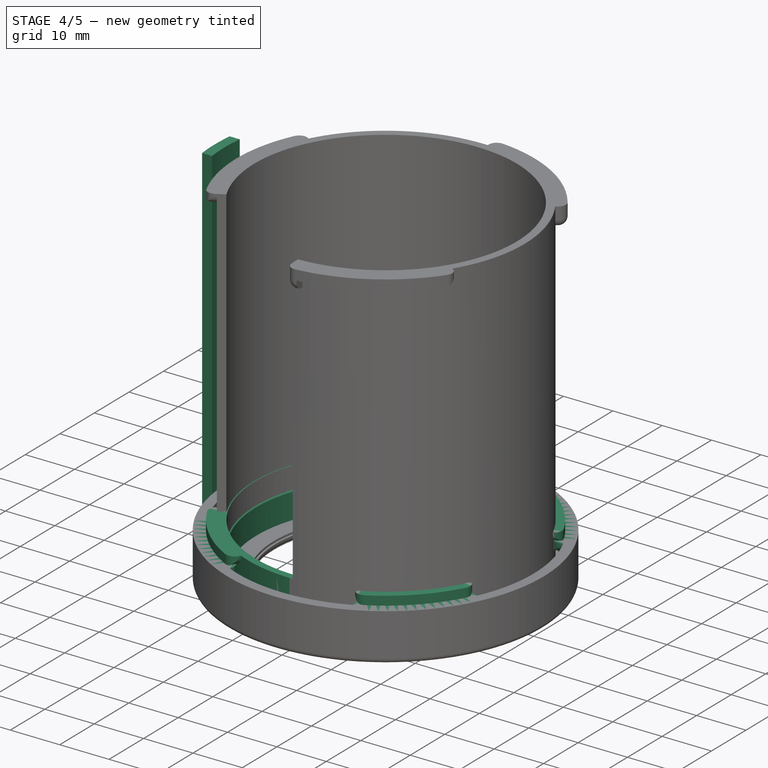
[diagram: stage 4 of 5 — iso view after this stage's code; geometry added in this stage tinted green]
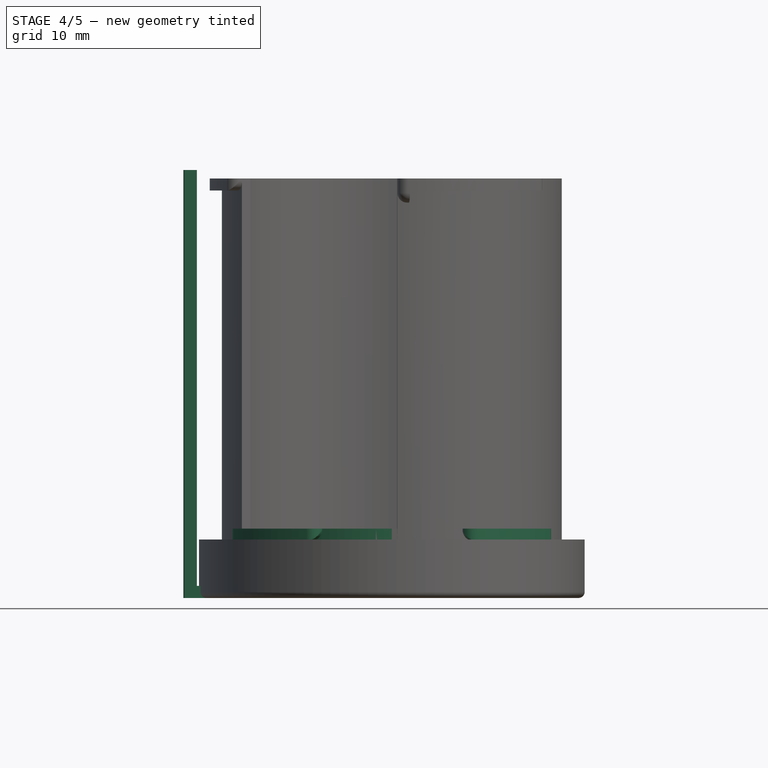
[diagram: stage 4 of 5 — front view after this stage's code; geometry added in this stage tinted green]
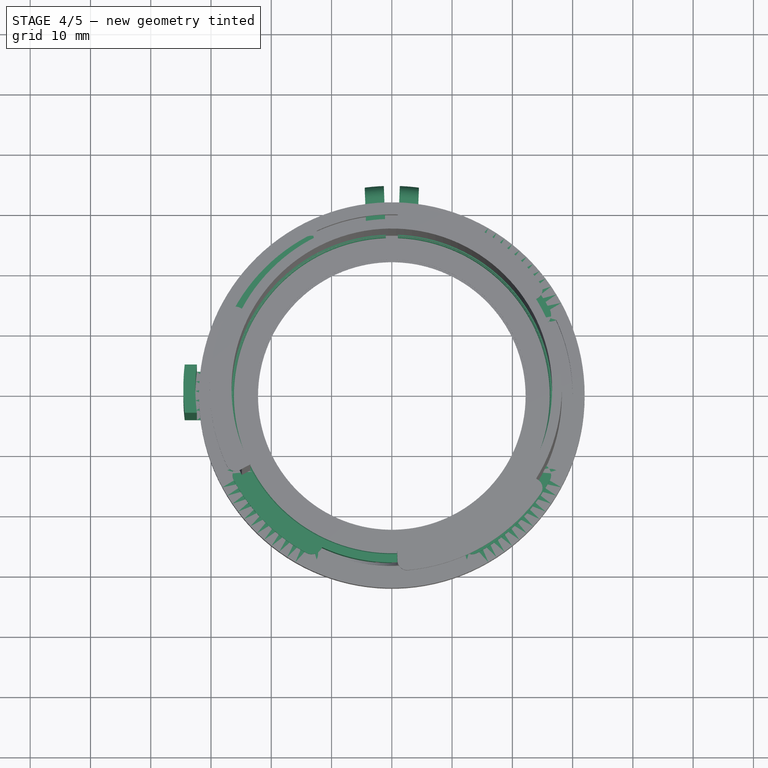
[diagram: stage 4 of 5 — top view after this stage's code; geometry added in this stage tinted green]
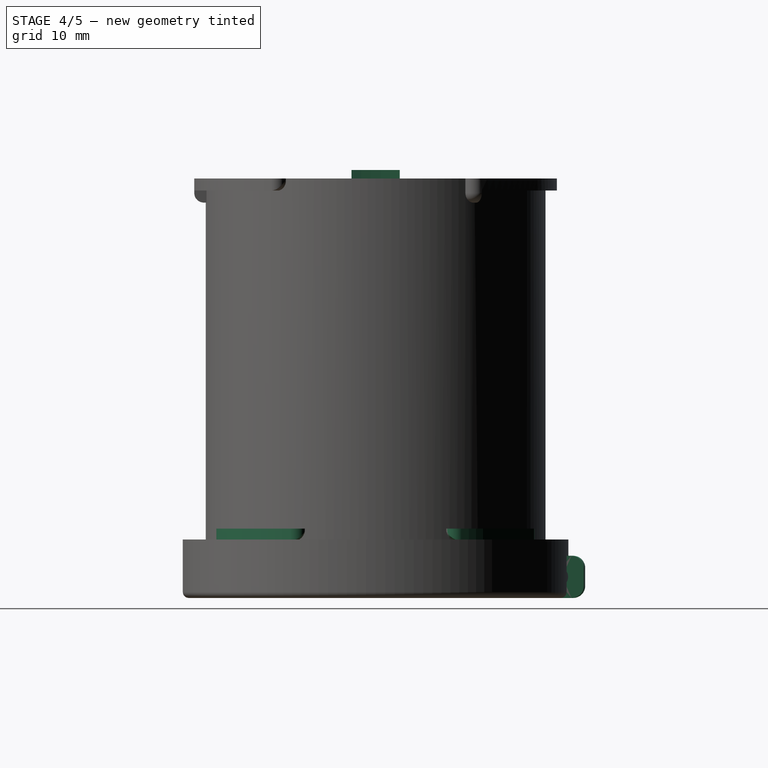
[diagram: stage 4 of 5 — right view after this stage's code; geometry added in this stage tinted green]
FEATURE [PartDesign::Body] Body001  label="V1_Clamp"
  Group = -> [ShapeBinder,Sketch001,Pad,Sketch002,Pad001,Sketch003,Pad002,Sketch004,Pad003]
  Origin = -> Origin001
  Tip = -> Pad003
FEATURE [PartDesign::ShapeBinder] ShapeBinder001
  Support = -> [Sketch]
  TraceSupport = false
FEATURE [Sketcher::SketchObject] Sketch005
  ExternalGeometry = -> [ShapeBinder001]
  FullyConstrained = true
  MapMode = 5
  Support = -> [XY_Plane002]
  sketch-geometry (15):
    g0: LineSegment StartX=-30.4383 StartY=4 StartZ=0 EndX=-28.6 EndY=6.7484e-12 EndZ=0
    g1: LineSegment StartX=-30.4383 StartY=-4 StartZ=0 EndX=-28.6 EndY=6.7484e-12 EndZ=0
    g2: LineSegment StartX=-28.5 StartY=6.7484e-12 StartZ=0 EndX=-28.6 EndY=6.7484e-12 EndZ=0
    g3: LineSegment StartX=-30.6 StartY=2.8257e-12 StartZ=0 EndX=-30.7 EndY=2.8257e-12 EndZ=0
    g4: ArcOfCircle CenterX=7.51e-13 CenterY=5.937e-13 CenterZ=0 NormalX=0 NormalY=0 NormalZ=1 AngleXU=0 Radius=28.6 StartAngle=3.00127 EndAngle=3.28191
    g5: ArcOfCircle CenterX=8.152e-13 CenterY=1.2211e-12 CenterZ=0 NormalX=0 NormalY=0 NormalZ=1 AngleXU=0 Radius=30.6 StartAngle=3.0105 EndAngle=3.27269
    g6: LineSegment StartX=-30.3374 StartY=4 StartZ=0 EndX=-28.3189 EndY=4 EndZ=0
    g7: LineSegment StartX=-30.3374 StartY=-4 StartZ=0 EndX=-28.3189 EndY=-4 EndZ=0
    g8: LineSegment StartX=-32.6 StartY=1.5988e-12 StartZ=0 EndX=-32.5 EndY=1.5988e-12 EndZ=0
    g9: ArcOfCircle CenterX=1.9778e-12 CenterY=-6.566e-13 CenterZ=0 NormalX=0 NormalY=0 NormalZ=1 AngleXU=0 Radius=32.6 StartAngle=3.01858 EndAngle=3.2646
    g10: LineSegment StartX=-30.3374 StartY=4 StartZ=0 EndX=-32.3537 EndY=4 EndZ=0
    g11: LineSegment StartX=-30.3374 StartY=-4 StartZ=0 EndX=-32.3537 EndY=-4 EndZ=0
    g12: LineSegment StartX=-32.3537 StartY=4 StartZ=0 EndX=-34.3699 EndY=4 EndZ=0
    g13: LineSegment StartX=-32.3537 StartY=-4 StartZ=0 EndX=-34.3699 EndY=-4 EndZ=0
    g14: ArcOfCircle CenterX=2.2041e-12 CenterY=1.1183e-12 CenterZ=0 NormalX=0 NormalY=0 NormalZ=1 AngleXU=0 Radius=34.6019 StartAngle=3.02573 EndAngle=3.25745
  constraints (44):
    c: Coincident(g0,g-4)
    c: Coincident(g1,g-4)
    c: Coincident(g1,g0)
    c: Equal(g0,g1)
    c: PointOnObject(g2,g-3)
    c: Coincident(g2,g0)
    c: Horizontal(g2)
    c: DistanceX(g2,g2) = 0.1
    c: Horizontal(g3)
    c: Equal(g2,g3)
    c: PointOnObject(g4,g-6)
    c: PointOnObject(g4,g-7)
    c: PointOnObject(g0,g4)
    c: Coincident(g-3,g4)
    c: PointOnObject(g5,g-6)
    c: PointOnObject(g5,g-7)
    c: Coincident(g-3,g5)
    c: Coincident(g6,g5)
    c: Coincident(g6,g4)
    c: Coincident(g7,g5)
    c: Coincident(g7,g4)
    c: Horizontal(g8)
    c: Equal(g3,g8)
    c: Coincident(g-3,g9)
    c: Coincident(g10,g5)
    c: Coincident(g10,g9)
    c: Horizontal(g10)
    c: Coincident(g11,g5)
    c: Coincident(g11,g9)
    c: Horizontal(g11)
    c: Coincident(g12,g9)
    c: Horizontal(g12)
    c: Coincident(g13,g9)
    c: Horizontal(g13)
    c: Equal(g11,g13)
    c: Coincident(g14,g12)
    c: Coincident(g14,g13)
    c: Coincident(g-3,g14)
    c: PointOnObject(g3,g-4)
    c: PointOnObject(g3,g2)
    c: PointOnObject(g3,g5)
    c: PointOnObject(g8,g3)
    c: PointOnObject(g8,g-5)
    c: PointOnObject(g8,g9)
FEATURE [Sketcher::SketchObject] Sketch006
  ExternalGeometry = -> [Sketch005]
  FullyConstrained = true
  MapMode = 5
  Support = -> [XY_Plane002]
  sketch-geometry (4):
    g0: ArcOfCircle CenterX=1.667e-13 CenterY=-6.34068e-11 CenterZ=0 NormalX=0 NormalY=0 NormalZ=1 AngleXU=0 Radius=28.6 StartAngle=3.00127 EndAngle=3.28191
    g1: ArcOfCircle CenterX=1.7399e-12 CenterY=-3.43736e-11 CenterZ=0 NormalX=0 NormalY=0 NormalZ=1 AngleXU=0 Radius=34.6019 StartAngle=3.02573 EndAngle=3.25745
    g2: LineSegment StartX=-34.3699 StartY=4 StartZ=0 EndX=-28.3189 EndY=4 EndZ=0
    g3: LineSegment StartX=-34.3699 StartY=-4 StartZ=0 EndX=-28.3189 EndY=-4 EndZ=0
  constraints (10):
    c: Coincident(g0,g-3)
    c: Coincident(g0,g-3)
    c: Coincident(g1,g-4)
    c: Coincident(g1,g-4)
    c: Equal(g-3,g0)
    c: Equal(g-4,g1)
    c: Coincident(g2,g1)
    c: Coincident(g2,g0)
    c: Coincident(g3,g1)
    c: Coincident(g3,g0)
FEATURE [PartDesign::Pad] Pad004
  Direction = (0,0,1)
  Length = 2
  Length2 = 10
  Profile = -> Sketch006
  ReferenceAxis = -> Sketch006 [N_Axis]
  Type = 0
FEATURE [Sketcher::SketchObject] Sketch007
  AttachmentOffset = pos=(0,0,2) rot=(0,0,1;0rad)
  ExternalGeometry = -> [Sketch005]
  FullyConstrained = true
  MapMode = 5
  Placement = pos=(0,0,2) rot=(0,0,1;0rad)
  Support = -> [XY_Plane002]
  expr: .AttachmentOffset.Base.z = <<Sketch006>>.AttachmentOffset.Base.z + <<Pad004>>.Length
  sketch-geometry (8):
    g0: ArcOfCircle CenterX=1.694e-13 CenterY=-6.34075e-11 CenterZ=0 NormalX=0 NormalY=0 NormalZ=1 AngleXU=0 Radius=28.6 StartAngle=3.00127 EndAngle=3.28191
    g1: ArcOfCircle CenterX=-1.0124e-12 CenterY=6.875e-13 CenterZ=0 NormalX=0 NormalY=0 NormalZ=1 AngleXU=0 Radius=30.6 StartAngle=3.0105 EndAngle=3.27269
    g2: ArcOfCircle CenterX=6.365e-13 CenterY=-4.98074e-10 CenterZ=0 NormalX=0 NormalY=0 NormalZ=1 AngleXU=0 Radius=32.6 StartAngle=3.01858 EndAngle=3.2646
    g3: ArcOfCircle CenterX=-8.5752e-12 CenterY=6.408e-13 CenterZ=0 NormalX=0 NormalY=0 NormalZ=1 AngleXU=0 Radius=34.6019 StartAngle=3.02573 EndAngle=3.25745
    g4: LineSegment StartX=-28.3189 StartY=4 StartZ=0 EndX=-30.3374 EndY=4 EndZ=0
    g5: LineSegment StartX=-32.3537 StartY=4 StartZ=0 EndX=-34.3699 EndY=4 EndZ=0
    g6: LineSegment StartX=-28.3189 StartY=-4 StartZ=0 EndX=-30.3374 EndY=-4 EndZ=0
    g7: LineSegment StartX=-32.3537 StartY=-4 StartZ=0 EndX=-34.3699 EndY=-4 EndZ=0
  constraints (20):
    c: Coincident(g0,g-6)
    c: Coincident(g0,g-6)
    c: Coincident(g1,g-5)
    c: Coincident(g1,g-5)
    c: Coincident(g2,g-4)
    c: Coincident(g2,g-4)
    c: Coincident(g3,g-3)
    c: Coincident(g3,g-3)
    c: Equal(g-3,g3)
    c: Equal(g-4,g2)
    c: Equal(g-5,g1)
    c: Equal(g-6,g0)
    c: Coincident(g4,g0)
    c: Coincident(g4,g1)
    c: Coincident(g5,g2)
    c: Coincident(g5,g3)
    c: Coincident(g6,g0)
    c: Coincident(g6,g1)
    c: Coincident(g7,g2)
    c: Coincident(g7,g3)
FEATURE [PartDesign::Pad] Pad005
  BaseFeature = -> Pad004
  Direction = (0,0,1)
  Length = 2
  Length2 = 10
  Profile = -> Sketch007
  ReferenceAxis = -> Sketch007 [N_Axis]
  Type = 0
FEATURE [Sketcher::SketchObject] Sketch008
  AttachmentOffset = pos=(0,0,4) rot=(0,0,1;0rad)
  ExternalGeometry = -> [Sketch005]
  FullyConstrained = true
  MapMode = 5
  Placement = pos=(0,0,4) rot=(0,0,1;0rad)
  Support = -> [XY_Plane002]
  expr: .AttachmentOffset.Base.z = <<Sketch007>>.AttachmentOffset.Base.z + <<Pad005>>.Length
  sketch-geometry (4):
    g0: ArcOfCircle CenterX=6.365e-13 CenterY=-4.98074e-10 CenterZ=0 NormalX=0 NormalY=0 NormalZ=1 AngleXU=0 Radius=32.6 StartAngle=3.01858 EndAngle=3.2646
    g1: ArcOfCircle CenterX=-8.5752e-12 CenterY=6.408e-13 CenterZ=0 NormalX=0 NormalY=0 NormalZ=1 AngleXU=0 Radius=34.6019 StartAngle=3.02573 EndAngle=3.25745
    g2: LineSegment StartX=-32.3537 StartY=4 StartZ=0 EndX=-34.3699 EndY=4 EndZ=0
    g3: LineSegment StartX=-32.3537 StartY=-4 StartZ=0 EndX=-34.3699 EndY=-4 EndZ=0
  constraints (10):
    c: Coincident(g0,g-4)
    c: Coincident(g0,g-4)
    c: Coincident(g1,g-3)
    c: Coincident(g1,g-3)
    c: Equal(g-3,g1)
    c: Equal(g-4,g0)
    c: Coincident(g2,g0)
    c: Coincident(g2,g1)
    c: Coincident(g3,g0)
    c: Coincident(g3,g1)
FEATURE [PartDesign::Pad] Pad006
  BaseFeature = -> Pad005
  Direction = (0,0,1)
  Length = 67
  Length2 = 10
  Profile = -> Sketch008
  ReferenceAxis = -> Sketch008 [N_Axis]
  Type = 0
FEATURE [PartDesign::PolarPattern] PolarPattern
  Angle = 360
  Axis = -> Sketch015 [N_Axis]
  BaseFeature = -> Pad011
  Occurrences = 4
  Originals = -> [Pad011]
  Refine = true
FEATURE [PartDesign::Fillet] Fillet002
  Base = -> PolarPattern [Edge75,Edge82,Edge89,Edge87,Edge80,Edge94,Edge96,Edge85,Edge83,Edge78,Edge76,Edge71,Edge97,Edge92,Edge90]
  BaseFeature = -> PolarPattern
  Radius = 1.9
  SupportTransform = false
  UseAllEdges = false
  expr: Radius = <<V2B_Lock_>>.Length - 0.1 mm
FEATURE [PartDesign::PolarPattern] PolarPattern001
  Angle = 360
  Axis = -> Sketch019 [N_Axis]
  BaseFeature = -> Pad014
  Occurrences = 4
  Originals = -> [Pad014]
  Refine = true
FEATURE [PartDesign::Fillet] Fillet004
  Base = -> PolarPattern001 [Edge43,Edge41,Edge38,Edge40,Edge33,Edge31,Edge34,Edge36,Edge26,Edge24,Edge29,Edge27,Edge47,Edge45,Edge50,Edge48]
  BaseFeature = -> PolarPattern001
  Radius = 1.9
  SupportTransform = false
  UseAllEdges = false
  expr: Radius = <<V2B_Lock_>>.Length - 0.1 mm
FEATURE [PartDesign::Fillet] Fillet005
  Base = -> Fillet004 [Face38]
  BaseFeature = -> Fillet004
  Radius = 1
  SupportTransform = false
  UseAllEdges = false
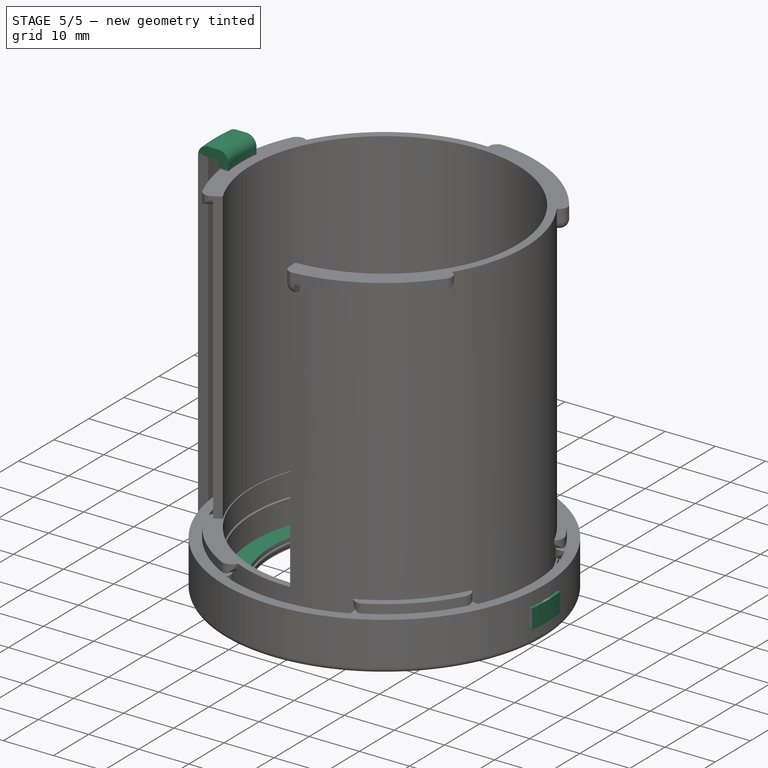
[diagram: stage 5 of 5 — iso view after this stage's code; geometry added in this stage tinted green]
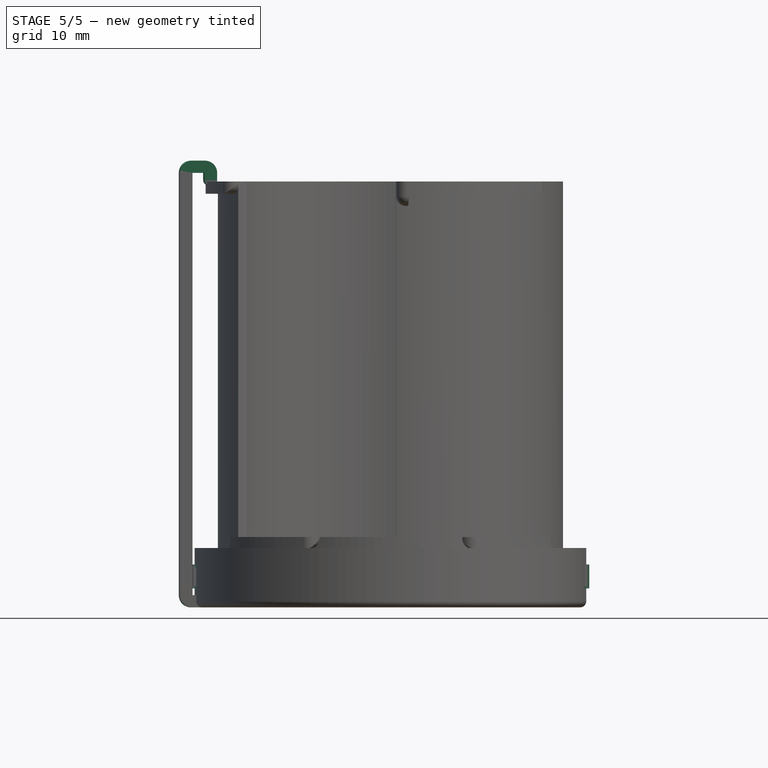
[diagram: stage 5 of 5 — front view after this stage's code; geometry added in this stage tinted green]
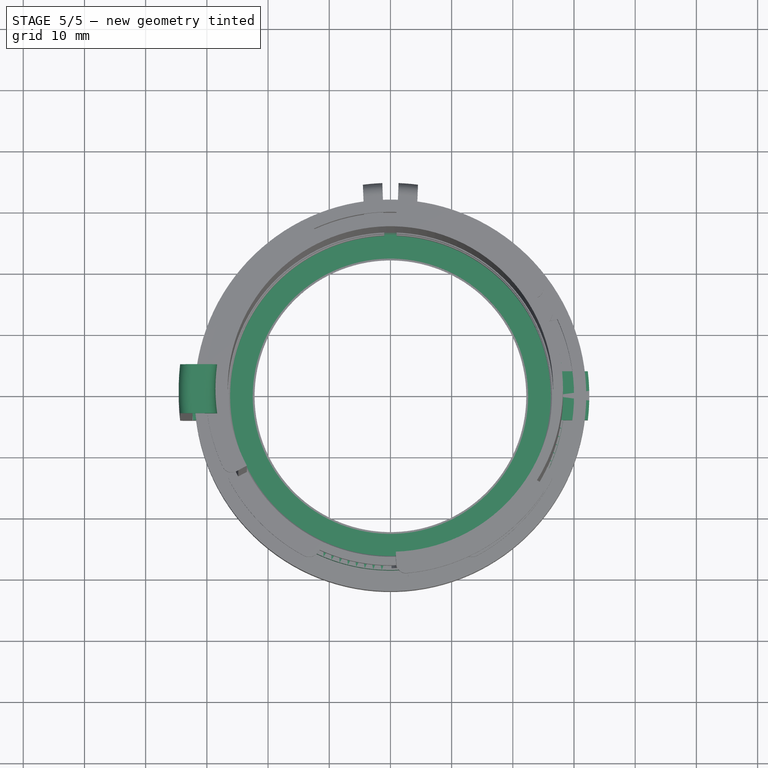
[diagram: stage 5 of 5 — top view after this stage's code; geometry added in this stage tinted green]
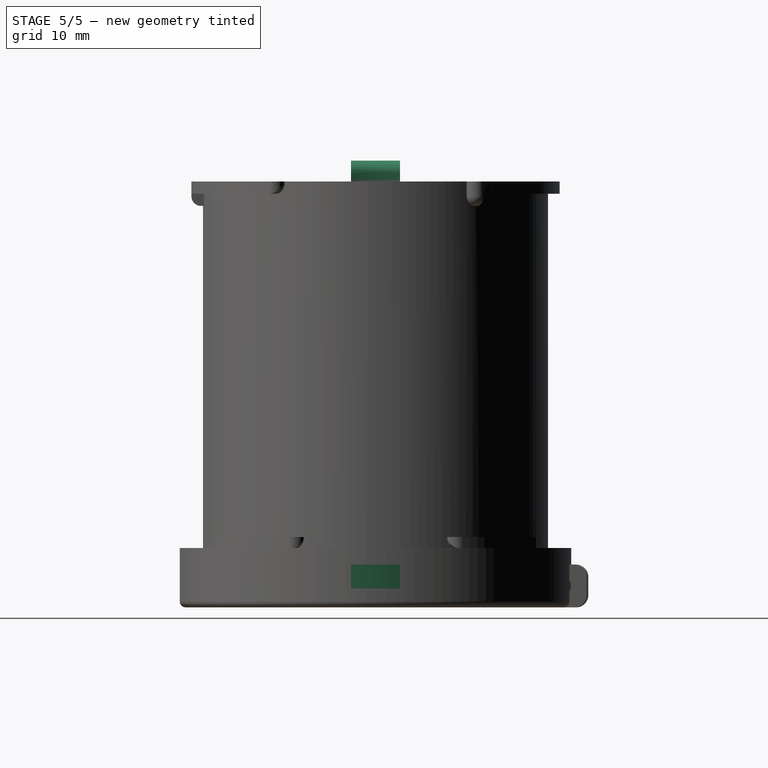
[diagram: stage 5 of 5 — right view after this stage's code; geometry added in this stage tinted green]
FEATURE [Sketcher::SketchObject] Sketch  label="V1_Template"
  FullyConstrained = true
  MapMode = 5
  Support = -> [XY_Plane]
  expr: Constraints[85] = <<Spreadsheet>>.Tolerance
  sketch-geometry (34):
    g0: ArcOfCircle CenterX=1.619e-13 CenterY=2.67e-14 CenterZ=0 NormalX=0 NormalY=0 NormalZ=1 AngleXU=0 Radius=26.5 StartAngle=0.151523 EndAngle=2.99007
    g1: ArcOfCircle CenterX=1.619e-13 CenterY=2.67e-14 CenterZ=0 NormalX=0 NormalY=0 NormalZ=1 AngleXU=0 Radius=26.5 StartAngle=3.29312 EndAngle=6.13166
    g2: ArcOfCircle CenterX=1.619e-13 CenterY=2.67e-14 CenterZ=0 NormalX=0 NormalY=0 NormalZ=1 AngleXU=0 Radius=26.5 StartAngle=2.99007 EndAngle=3.29312
    g3: ArcOfCircle CenterX=1.619e-13 CenterY=2.67e-14 CenterZ=0 NormalX=0 NormalY=0 NormalZ=1 AngleXU=0 Radius=26.5 StartAngle=6.13166 EndAngle=6.43471
    g4: LineSegment StartX=-26.1964 StartY=4 StartZ=0 EndX=26.1964 EndY=4 EndZ=0
    g5: LineSegment StartX=-26.1964 StartY=-4 StartZ=0 EndX=26.1964 EndY=-4 EndZ=0
    g6: LineSegment StartX=-26.1964 StartY=4 StartZ=0 EndX=-26.1964 EndY=-4 EndZ=0
    g7: Circle CenterX=1.619e-13 CenterY=2.67e-14 CenterZ=0 NormalX=0 NormalY=0 NormalZ=1 AngleXU=0 Radius=28.5
    g8: LineSegment StartX=-26.5 StartY=2.67e-14 StartZ=0 EndX=-28.5 EndY=2.67e-14 EndZ=0
    g9: Circle CenterX=1.619e-13 CenterY=2.67e-14 CenterZ=0 NormalX=0 NormalY=0 NormalZ=1 AngleXU=0 Radius=22.5
    g10: LineSegment StartX=1.619e-13 StartY=2.67e-14 StartZ=0 EndX=-22.5 EndY=2.67e-14 EndZ=0
    g11: LineSegment StartX=-22.5 StartY=2.67e-14 StartZ=0 EndX=-26.5 EndY=2.67e-14 EndZ=0
    g12: LineSegment StartX=-26.1964 StartY=4 StartZ=0 EndX=-28.2179 EndY=4 EndZ=0
    g13: LineSegment StartX=-26.1964 StartY=-4 StartZ=0 EndX=-28.2179 EndY=-4 EndZ=0
    g14: LineSegment StartX=26.1964 StartY=4 StartZ=0 EndX=28.2179 EndY=4 EndZ=0
    g15: LineSegment StartX=26.1964 StartY=-4 StartZ=0 EndX=28.2179 EndY=-4 EndZ=0
    g16: ArcOfCircle CenterX=1.619e-13 CenterY=2.67e-14 CenterZ=0 NormalX=0 NormalY=0 NormalZ=1 AngleXU=0 Radius=30.7 StartAngle=3.01093 EndAngle=3.27226
    g17: ArcOfCircle CenterX=1.619e-13 CenterY=2.67e-14 CenterZ=0 NormalX=0 NormalY=0 NormalZ=1 AngleXU=0 Radius=30.7 StartAngle=6.15252 EndAngle=6.41385
    g18: ArcOfCircle CenterX=1.619e-13 CenterY=2.67e-14 CenterZ=0 NormalX=0 NormalY=0 NormalZ=1 AngleXU=0 Radius=32.5 StartAngle=6.1598 EndAngle=6.40658
    g19: ArcOfCircle CenterX=1.619e-13 CenterY=2.67e-14 CenterZ=0 NormalX=0 NormalY=0 NormalZ=1 AngleXU=0 Radius=32.5 StartAngle=3.0182 EndAngle=3.26498
    g20: LineSegment StartX=-28.2179 StartY=-4 StartZ=0 EndX=-30.4383 EndY=-4 EndZ=0
    g21: LineSegment StartX=-28.2179 StartY=4 StartZ=0 EndX=-30.4383 EndY=4 EndZ=0
    g22: LineSegment StartX=-30.4383 StartY=4 StartZ=0 EndX=-32.2529 EndY=4 EndZ=0
    g23: LineSegment StartX=-30.4383 StartY=-4 StartZ=0 EndX=-32.2529 EndY=-4 EndZ=0
    g24: LineSegment StartX=28.2179 StartY=4 StartZ=0 EndX=30.4383 EndY=4 EndZ=0
    g25: LineSegment StartX=30.4383 StartY=4 StartZ=0 EndX=32.2529 EndY=4 EndZ=0
    g26: LineSegment StartX=28.2179 StartY=-4 StartZ=0 EndX=30.4383 EndY=-4 EndZ=0
    g27: LineSegment StartX=30.4383 StartY=-4 StartZ=0 EndX=32.2529 EndY=-4 EndZ=0
    g28: LineSegment StartX=-30.7 StartY=2.67e-14 StartZ=0 EndX=-32.7 EndY=2.67e-14 EndZ=0
    g29: LineSegment StartX=-30.6 StartY=2.67e-14 StartZ=0 EndX=-30.7 EndY=2.67e-14 EndZ=0
    g30: LineSegment StartX=-28.5 StartY=2.67e-14 StartZ=0 EndX=-28.6 EndY=2.67e-14 EndZ=0
    g31: LineSegment StartX=-28.6 StartY=2.67e-14 StartZ=0 EndX=-30.6 EndY=2.67e-14 EndZ=0
    g32: LineSegment StartX=-32.7 StartY=2.67e-14 StartZ=0 EndX=-32.6 EndY=2.68e-14 EndZ=0
    g33: LineSegment StartX=-32.6 StartY=2.68e-14 StartZ=0 EndX=-32.5 EndY=2.68e-14 EndZ=0
  constraints (94):
    c: Coincident(g1,g0)
    c: Coincident(g2,g0)
    c: Coincident(g2,g1)
    c: Coincident(g2,g0)
    c: Coincident(g3,g0)
    c: Coincident(g3,g0)
    c: Coincident(g4,g2)
    c: Coincident(g4,g3)
    c: Coincident(g5,g2)
    c: Coincident(g5,g3)
    c: Horizontal(g5)
    c: Horizontal(g4)
    c: Coincident(g10,g2)
    c: PointOnObject(g11,g2)
    c: Diameter(g0) = 53
    c: Coincident(g6,g2)
    c: Coincident(g6,g2)
    c: Vertical(g6)
    c: DistanceY(g2,g2) = 8
    c: Coincident(g7,g2)
    c: Coincident(g8,g11)
    c: PointOnObject(g8,g7)
    c: Horizontal(g8)
    c: DistanceX(g8,g8) = 2
    c: PointOnObject(g1,g5)
    c: Coincident(g9,g2)
    c: Coincident(g10,g11)
    c: Horizontal(g10)
    c: Horizontal(g11)
    c: PointOnObject(g10,g9)
    c: DistanceX(g11,g11) = 4
    c: Coincident(g12,g2)
    c: PointOnObject(g12,g7)
    c: Horizontal(g12)
    c: Coincident(g13,g2)
    c: PointOnObject(g13,g7)
    c: Horizontal(g13)
    c: Coincident(g14,g3)
    c: PointOnObject(g14,g7)
    c: Horizontal(g14)
    c: Coincident(g15,g3)
    c: PointOnObject(g15,g7)
    c: Horizontal(g15)
    c: Coincident(g16,g2)
    c: Coincident(g17,g2)
    c: Coincident(g18,g2)
    c: Coincident(g19,g2)
    c: Coincident(g20,g13)
    c: Horizontal(g20)
    c: Coincident(g16,g20)
    c: Coincident(g21,g12)
    c: Coincident(g21,g16)
    c: Horizontal(g21)
    c: Coincident(g22,g16)
    c: Coincident(g22,g19)
    c: Coincident(g23,g16)
    c: Coincident(g23,g19)
    c: Horizontal(g23)
    c: Horizontal(g22)
    c: Coincident(g24,g14)
    c: Coincident(g24,g17)
    c: Horizontal(g24)
    c: Coincident(g25,g17)
    c: Coincident(g25,g18)
    c: Horizontal(g25)
    c: Equal(g21,g24)
    c: Equal(g25,g22)
    c: Coincident(g26,g15)
    c: Coincident(g26,g17)
    c: Horizontal(g26)
    c: Coincident(g27,g17)
    c: Coincident(g27,g18)
    c: Horizontal(g27)
    c: Coincident(g30,g8)
    c: PointOnObject(g29,g16)
    c: Coincident(g28,g29)
    c: Horizontal(g28)
    c: Coincident(g2,g-1)  '__ANCHOR__'
    c: Coincident(g31,g29)
    c: Horizontal(g29)
    c: Coincident(g30,g31)
    c: Horizontal(g30)
    c: Horizontal(g31)
    c: Equal(g29,g30)
    c: Equal(g8,g31)
    c: DistanceX(g30,g30) = 0.1
    c: Equal(g8,g28)
    c: Coincident(g32,g28)
    c: PointOnObject(g32,g28)
    c: Coincident(g33,g32)
    c: PointOnObject(g33,g28)
    c: Equal(g32,g33)
    c: Equal(g33,g29)
    c: PointOnObject(g33,g19)
FEATURE [PartDesign::Body] Body  label="V1_Shared"
  Group = -> [Sketch]
  Origin = -> Origin
FEATURE [PartDesign::ShapeBinder] ShapeBinder
  Support = -> [Sketch]
  TraceSupport = false
FEATURE [Sketcher::SketchObject] Sketch001
  ExternalGeometry = -> [ShapeBinder]
  FullyConstrained = true
  MapMode = 5
  Support = -> [XY_Plane001]
  sketch-geometry (2):
    g0: Circle CenterX=2.57e-14 CenterY=-2.43906e-11 CenterZ=0 NormalX=0 NormalY=0 NormalZ=1 AngleXU=0 Radius=22.5
    g1: Circle CenterX=2.57e-14 CenterY=-2.43906e-11 CenterZ=0 NormalX=0 NormalY=0 NormalZ=1 AngleXU=0 Radius=28.5
  constraints (4):
    c: Equal(g-3,g0)
    c: Coincident(g1,g0)
    c: Coincident(g-3,g0)
    c: Equal(g1,g-4)
FEATURE [PartDesign::Pad] Pad
  Direction = (0,0,1)
  Length = 2
  Length2 = 10
  Profile = -> Sketch001
  ReferenceAxis = -> Sketch001 [N_Axis]
  Type = 0
FEATURE [Sketcher::SketchObject] Sketch002
  AttachmentOffset = pos=(0,0,2) rot=(0,0,1;0rad)
  ExternalGeometry = -> [ShapeBinder]
  FullyConstrained = true
  MapMode = 5
  Placement = pos=(0,0,2) rot=(0,0,1;0rad)
  Support = -> [XY_Plane001]
  expr: .AttachmentOffset.Base.z = Pad.Length
  sketch-geometry (2):
    g0: Circle CenterX=8.3e-15 CenterY=8.97602e-11 CenterZ=0 NormalX=0 NormalY=0 NormalZ=1 AngleXU=0 Radius=28.5
    g1: Circle CenterX=8.3e-15 CenterY=8.97602e-11 CenterZ=0 NormalX=0 NormalY=0 NormalZ=1 AngleXU=0 Radius=26.5
  constraints (4):
    c: Coincident(g1,g0)
    c: Coincident(g-3,g0)
    c: Equal(g0,g-3)
    c: Equal(g1,g-4)
FEATURE [PartDesign::Pad] Pad001
  BaseFeature = -> Pad
  Direction = (0,0,1)
  Length = 5
  Length2 = 10
  Profile = -> Sketch002
  ReferenceAxis = -> Sketch002 [N_Axis]
  Type = 0
FEATURE [Sketcher::SketchObject] Sketch003
  AttachmentOffset = pos=(0,0,7) rot=(0,0,1;0rad)
  ExternalGeometry = -> [ShapeBinder]
  FullyConstrained = true
  MapMode = 5
  Placement = pos=(0,0,7) rot=(0,0,1;0rad)
  Support = -> [XY_Plane001]
  expr: .AttachmentOffset.Base.z = <<Pad>>.Length + <<Pad001>>.Length
  sketch-geometry (8):
    g0: ArcOfCircle CenterX=6.719e-13 CenterY=9.616e-13 CenterZ=0 NormalX=0 NormalY=0 NormalZ=1 AngleXU=0 Radius=32.5 StartAngle=3.0182 EndAngle=3.26498
    g1: ArcOfCircle CenterX=6.713e-13 CenterY=1.005e-12 CenterZ=0 NormalX=0 NormalY=0 NormalZ=1 AngleXU=0 Radius=32.5 StartAngle=6.1598 EndAngle=6.40658
    g2: LineSegment StartX=-32.2529 StartY=4 StartZ=0 EndX=-28.2179 EndY=4 EndZ=0
    g3: LineSegment StartX=-32.2529 StartY=-4 StartZ=0 EndX=-28.2179 EndY=-4 EndZ=0
    g4: LineSegment StartX=28.2179 StartY=4 StartZ=0 EndX=32.2529 EndY=4 EndZ=0
    g5: LineSegment StartX=28.2179 StartY=-4 StartZ=0 EndX=32.2529 EndY=-4 EndZ=0
    g6: ArcOfCircle CenterX=7.3e-15 CenterY=1.1406e-12 CenterZ=0 NormalX=0 NormalY=0 NormalZ=1 AngleXU=0 Radius=28.5 StartAngle=3.00078 EndAngle=3.28241
    g7: ArcOfCircle CenterX=6e-16 CenterY=-8.64e-14 CenterZ=0 NormalX=0 NormalY=0 NormalZ=1 AngleXU=0 Radius=28.5 StartAngle=6.14237 EndAngle=6.424
  constraints (20):
    c: Coincident(g0,g-4)
    c: Coincident(g0,g-4)
    c: Coincident(g1,g-7)
    c: Coincident(g1,g-7)
    c: Equal(g-4,g0)
    c: Equal(g-7,g1)
    c: Coincident(g2,g0)
    c: Coincident(g3,g0)
    c: Coincident(g4,g1)
    c: Coincident(g5,g1)
    c: Coincident(g6,g2)
    c: Coincident(g6,g3)
    c: Coincident(g7,g4)
    c: Coincident(g7,g5)
    c: Coincident(g5,g-9)
    c: Coincident(g3,g-6)
    c: Equal(g-3,g6)
    c: Equal(g6,g7)
    c: Coincident(g4,g-8)
    c: Coincident(g2,g-5)
FEATURE [PartDesign::Pad] Pad002
  BaseFeature = -> Pad001
  Direction = (0,0,1)
  Length = 2
  Length2 = 10
  Profile = -> Sketch003
  ReferenceAxis = -> Sketch003 [N_Axis]
  Reversed = true
  Type = 0
FEATURE [Sketcher::SketchObject] Sketch004
  AttachmentOffset = pos=(0,0,5) rot=(0,0,1;0rad)
  ExternalGeometry = -> [ShapeBinder]
  FullyConstrained = true
  MapMode = 5
  Placement = pos=(0,0,5) rot=(0,0,1;0rad)
  Support = -> [XY_Plane001]
  expr: .AttachmentOffset.Base.z = <<Sketch003>>.AttachmentOffset.Base.z - <<Pad002>>.Length
  sketch-geometry (8):
    g0: ArcOfCircle CenterX=6.719e-13 CenterY=9.616e-13 CenterZ=0 NormalX=0 NormalY=0 NormalZ=1 AngleXU=0 Radius=32.5 StartAngle=3.0182 EndAngle=3.26498
    g1: ArcOfCircle CenterX=6.713e-13 CenterY=1.005e-12 CenterZ=0 NormalX=0 NormalY=0 NormalZ=1 AngleXU=0 Radius=32.5 StartAngle=6.1598 EndAngle=6.40658
    g2: LineSegment StartX=-32.2529 StartY=4 StartZ=0 EndX=-30.4383 EndY=4 EndZ=0
    g3: LineSegment StartX=-32.2529 StartY=-4 StartZ=0 EndX=-30.4383 EndY=-4 EndZ=0
    g4: LineSegment StartX=30.4383 StartY=4 StartZ=0 EndX=32.2529 EndY=4 EndZ=0
    g5: LineSegment StartX=30.4383 StartY=-4 StartZ=0 EndX=32.2529 EndY=-4 EndZ=0
    g6: ArcOfCircle CenterX=1.31e-14 CenterY=1.83e-14 CenterZ=0 NormalX=0 NormalY=0 NormalZ=1 AngleXU=0 Radius=30.7 StartAngle=3.01093 EndAngle=3.27226
    g7: ArcOfCircle CenterX=-9.21e-14 CenterY=1.12105e-10 CenterZ=0 NormalX=0 NormalY=0 NormalZ=1 AngleXU=0 Radius=30.7 StartAngle=6.15252 EndAngle=6.41385
  constraints (20):
    c: Coincident(g0,g-3)
    c: Coincident(g0,g-3)
    c: Coincident(g1,g-4)
    c: Coincident(g1,g-4)
    c: Equal(g-3,g0)
    c: Equal(g-4,g1)
    c: Coincident(g2,g0)
    c: Coincident(g3,g0)
    c: Coincident(g4,g1)
    c: Coincident(g5,g1)
    c: Coincident(g6,g2)
    c: Coincident(g6,g3)
    c: Coincident(g7,g4)
    c: Coincident(g7,g5)
    c: Equal(g6,g7)
    c: Coincident(g2,g-5)
    c: Coincident(g3,g-5)
    c: Equal(g6,g-5)
    c: Coincident(g4,g-6)
    c: Coincident(g5,g-6)
FEATURE [PartDesign::Pad] Pad003
  BaseFeature = -> Pad002
  Direction = (0,0,1)
  Length = 1.9
  Length2 = 10
  Profile = -> Sketch004
  ReferenceAxis = -> Sketch004 [N_Axis]
  Refine = true
  Reversed = true
  Type = 0
FEATURE [Sketcher::SketchObject] Sketch009
  AttachmentOffset = pos=(0,0,71) rot=(0,0,1;0rad)
  ExternalGeometry = -> [Sketch005]
  FullyConstrained = true
  MapMode = 5
  Placement = pos=(0,0,71) rot=(0,0,1;0rad)
  Support = -> [XY_Plane002]
  expr: .AttachmentOffset.Base.z = <<Sketch008>>.AttachmentOffset.Base.z + <<Pad006>>.Length
  sketch-geometry (4):
    g0: ArcOfCircle CenterX=1.694e-13 CenterY=-6.34075e-11 CenterZ=0 NormalX=0 NormalY=0 NormalZ=1 AngleXU=0 Radius=28.6 StartAngle=3.00127 EndAngle=3.28191
    g1: ArcOfCircle CenterX=-8.5752e-12 CenterY=6.408e-13 CenterZ=0 NormalX=0 NormalY=0 NormalZ=1 AngleXU=0 Radius=34.6019 StartAngle=3.02573 EndAngle=3.25745
    g2: LineSegment StartX=-28.3189 StartY=4 StartZ=0 EndX=-34.3699 EndY=4 EndZ=0
    g3: LineSegment StartX=-28.3189 StartY=-4 StartZ=0 EndX=-34.3699 EndY=-4 EndZ=0
  constraints (10):
    c: Coincident(g0,g-4)
    c: Coincident(g0,g-4)
    c: Coincident(g1,g-3)
    c: Coincident(g1,g-3)
    c: Equal(g-3,g1)
    c: Equal(g-4,g0)
    c: Coincident(g2,g0)
    c: Coincident(g3,g0)
    c: Coincident(g2,g1)
    c: Coincident(g3,g1)
FEATURE [PartDesign::Pad] Pad007
  BaseFeature = -> Pad006
  Direction = (0,0,1)
  Length = 2
  Length2 = 10
  Profile = -> Sketch009
  ReferenceAxis = -> Sketch009 [N_Axis]
  Type = 0
FEATURE [Sketcher::SketchObject] Sketch010
  AttachmentOffset = pos=(0,0,71) rot=(0,0,1;0rad)
  ExternalGeometry = -> [Sketch005]
  FullyConstrained = true
  MapMode = 5
  Placement = pos=(0,0,71) rot=(0,0,1;0rad)
  Support = -> [XY_Plane002]
  expr: .AttachmentOffset.Base.z = <<Sketch009>>.AttachmentOffset.Base.z
  sketch-geometry (4):
    g0: ArcOfCircle CenterX=1.694e-13 CenterY=-6.34075e-11 CenterZ=0 NormalX=0 NormalY=0 NormalZ=1 AngleXU=0 Radius=28.6 StartAngle=3.00127 EndAngle=3.28191
    g1: ArcOfCircle CenterX=-1.0124e-12 CenterY=6.875e-13 CenterZ=0 NormalX=0 NormalY=0 NormalZ=1 AngleXU=0 Radius=30.6 StartAngle=3.0105 EndAngle=3.27269
    g2: LineSegment StartX=-28.3189 StartY=4 StartZ=0 EndX=-30.3374 EndY=4 EndZ=0
    g3: LineSegment StartX=-28.3189 StartY=-4 StartZ=0 EndX=-30.3374 EndY=-4 EndZ=0
  constraints (10):
    c: Coincident(g0,g-4)
    c: Coincident(g0,g-4)
    c: Coincident(g1,g-3)
    c: Coincident(g1,g-3)
    c: Equal(g-3,g1)
    c: Equal(g-4,g0)
    c: Coincident(g2,g0)
    c: Coincident(g2,g1)
    c: Coincident(g3,g0)
    c: Coincident(g3,g1)
FEATURE [PartDesign::Pad] Pad008
  BaseFeature = -> Pad007
  Direction = (0,0,1)
  Length = 2
  Length2 = 10
  Profile = -> Sketch010
  ReferenceAxis = -> Sketch010 [N_Axis]
  Refine = true
  Reversed = true
  Type = 0
FEATURE [Spreadsheet::Sheet] Spreadsheet
  cells = B2='Tolerance; C2(Tolerance)==0.1 mm
FEATURE [PartDesign::Fillet] Fillet
  Base = -> Pad008 [Edge32,Edge4,Edge2,Edge30]
  BaseFeature = -> Pad008
  Radius = 1.99
  SupportTransform = false
  UseAllEdges = false
FEATURE [PartDesign::Fillet] Fillet001
  Base = -> Fillet [Edge43,Edge44,Edge41,Edge42]
  BaseFeature = -> Fillet
  Radius = 0.8
  SupportTransform = false
  UseAllEdges = false
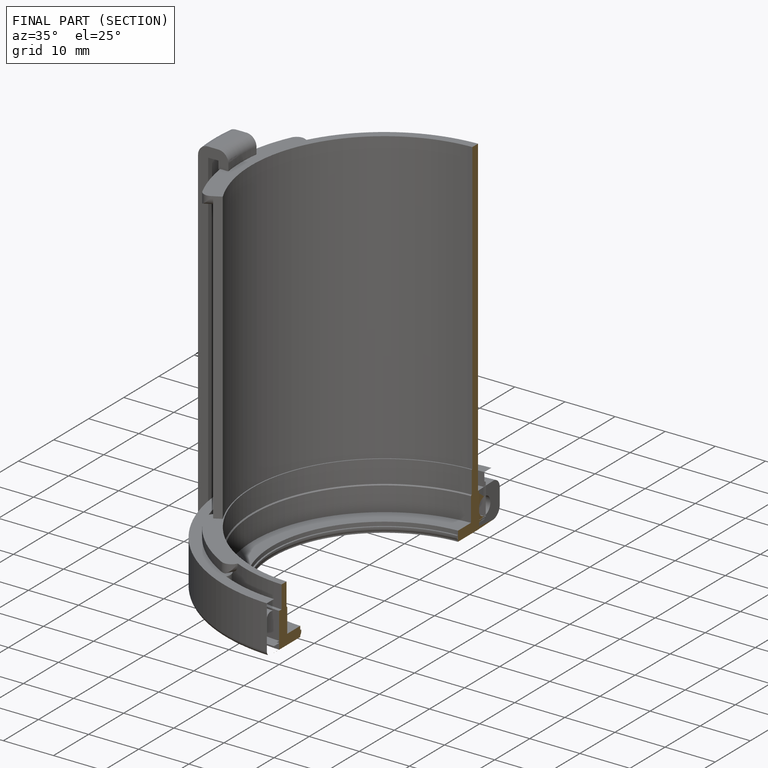
[diagram: finished part — half-section view (interior)]
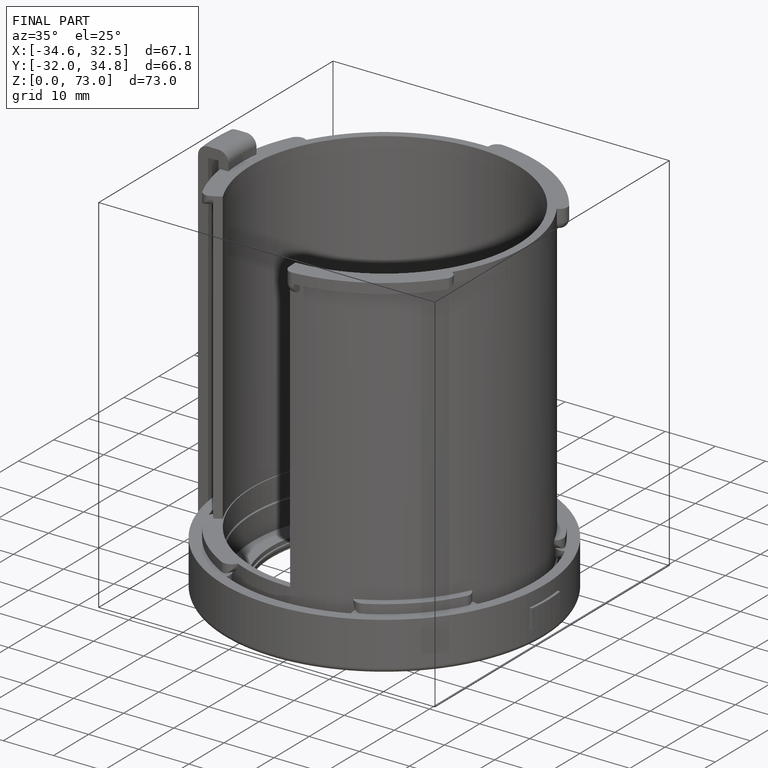
[diagram: finished part — iso view with bounding-box wireframe]
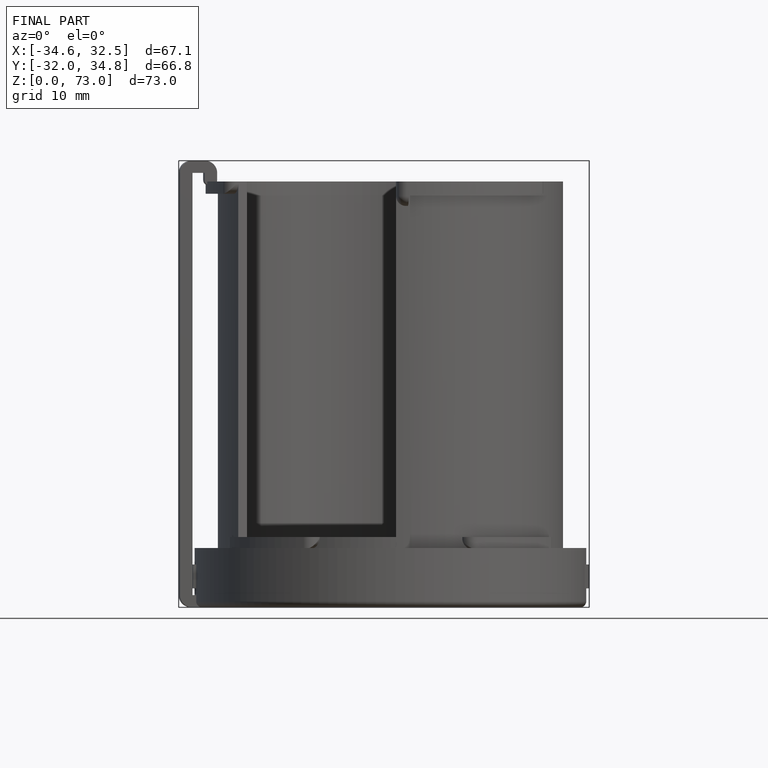
[diagram: finished part — front view with bounding-box wireframe]
